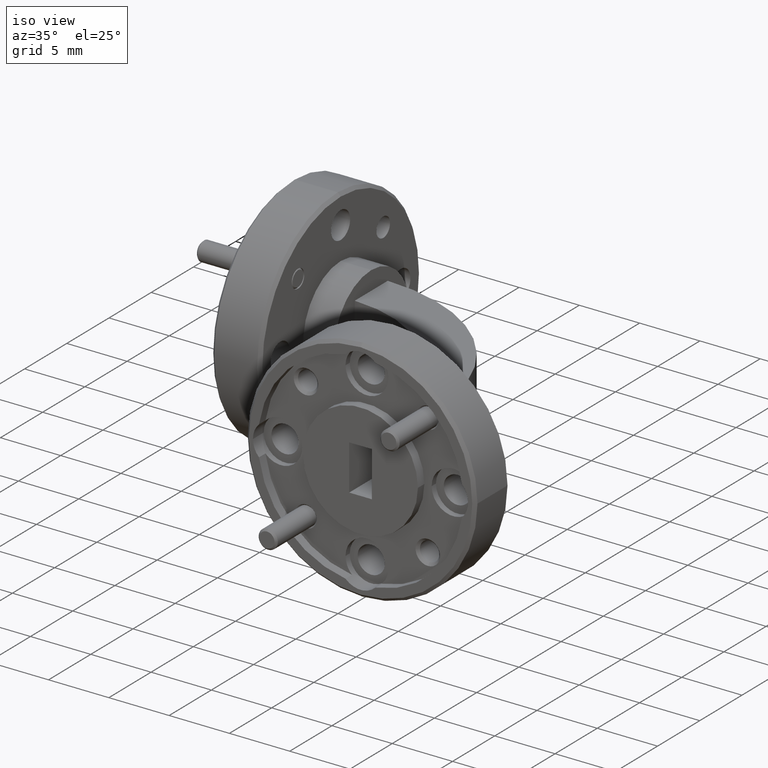
[diagram: clean part render]
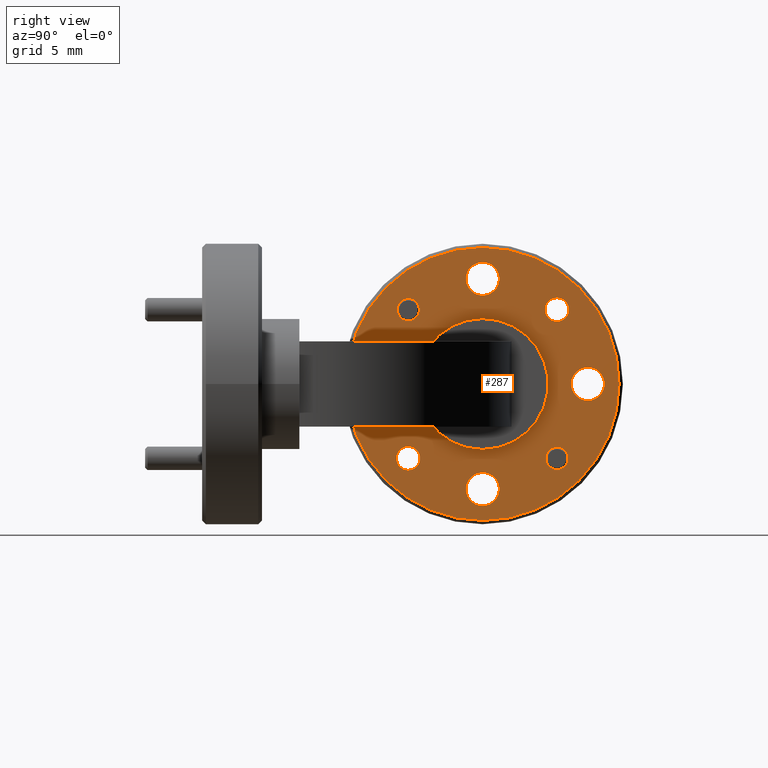
[diagram: tour spotlight — one face highlighted and labeled with its STEP entity id]
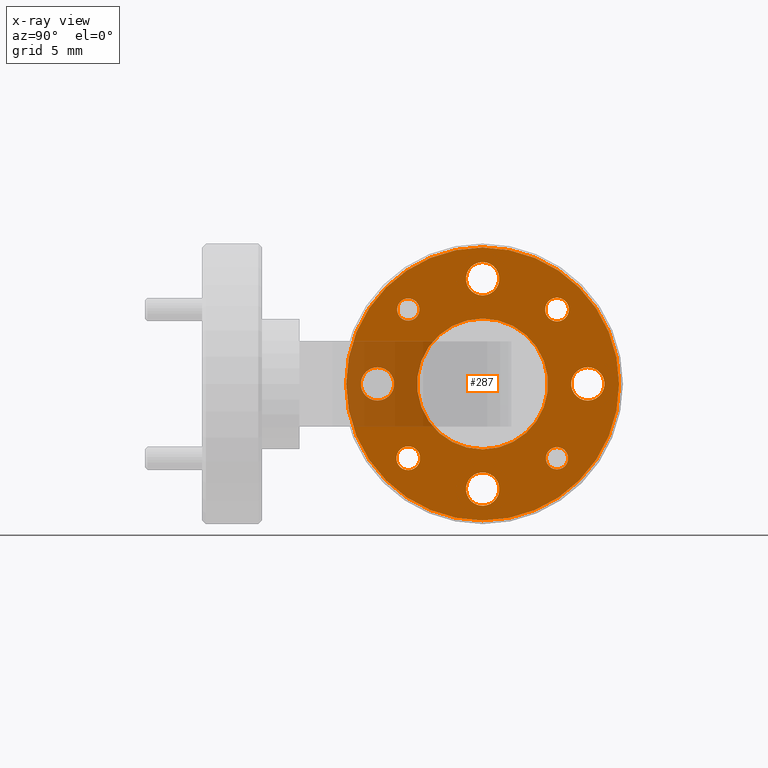
[diagram: x-ray of the same camera — body ghosted, this tour face saturated]
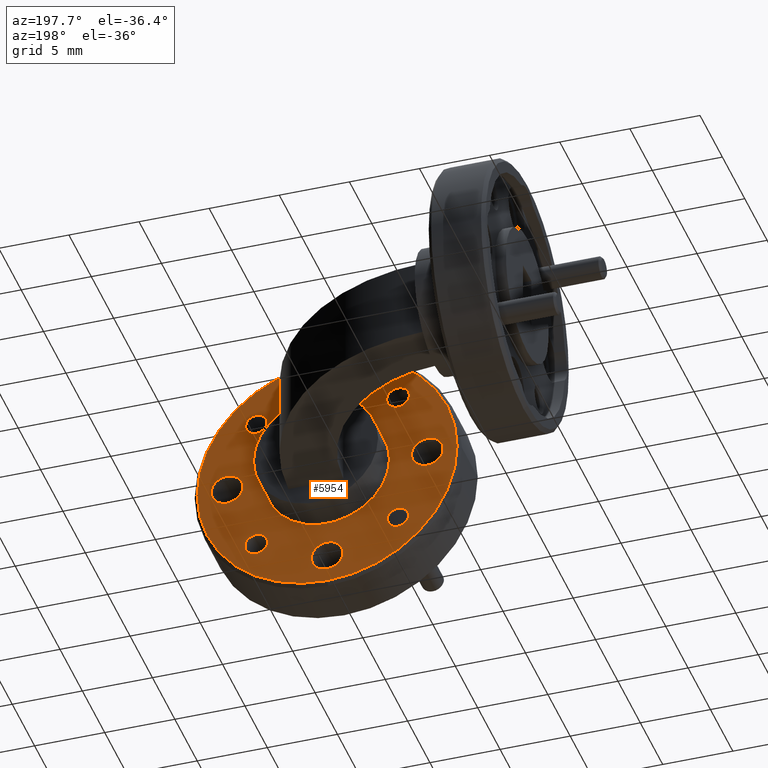
[diagram: tour spotlight — one face highlighted and labeled with its STEP entity id]
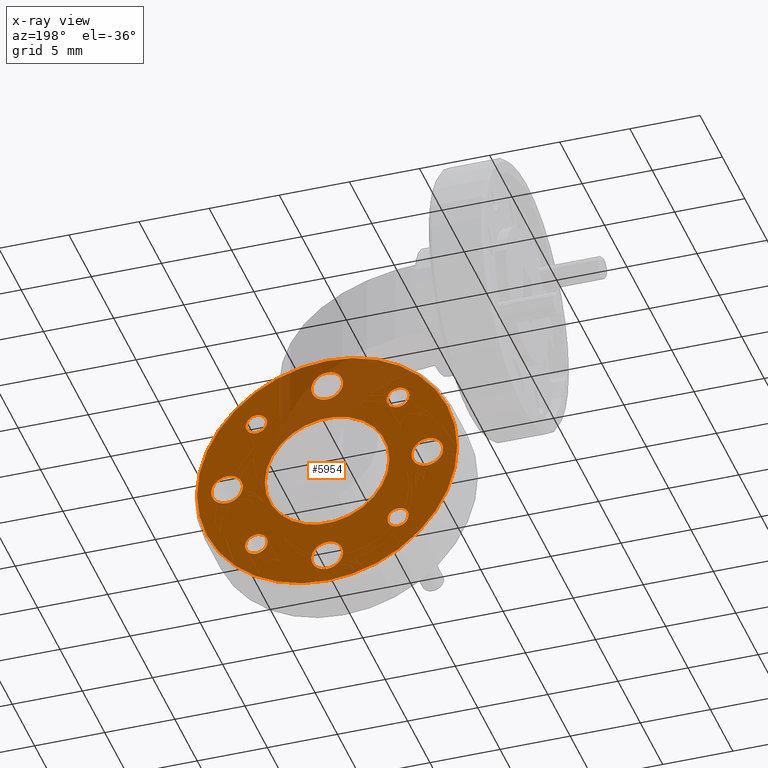
[diagram: x-ray of the same camera — body ghosted, this tour face saturated]
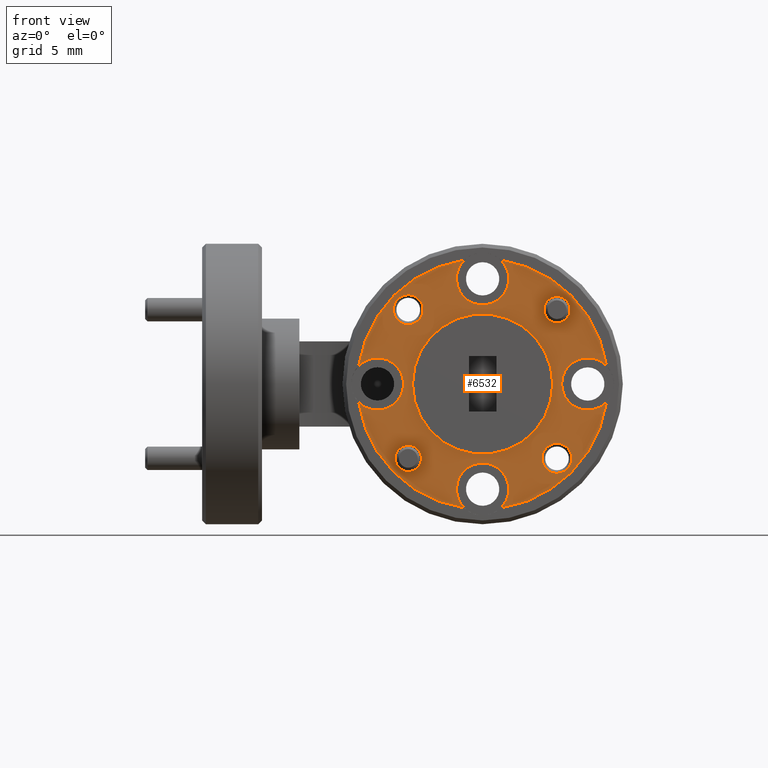
[diagram: tour spotlight — one face highlighted and labeled with its STEP entity id]
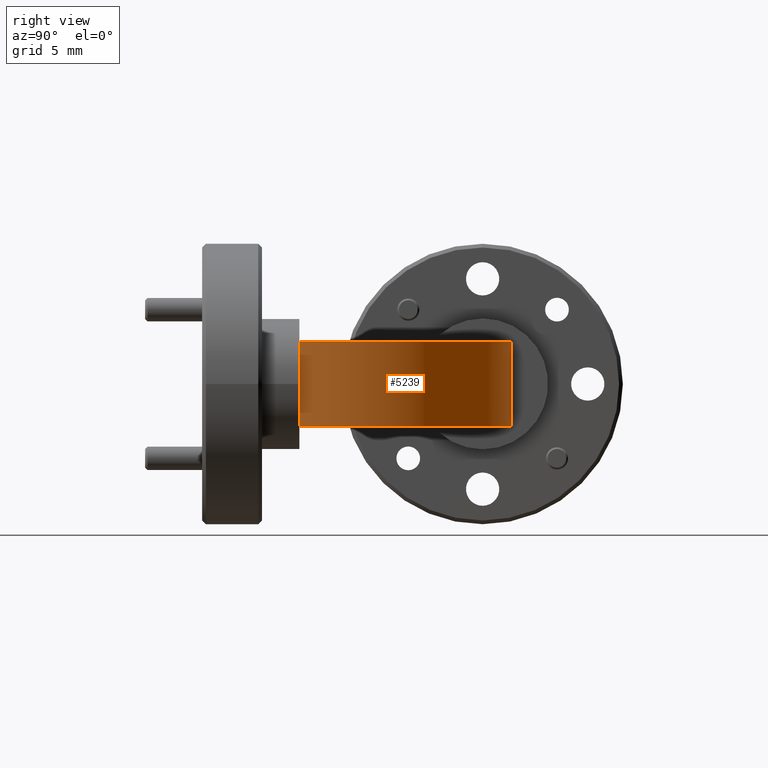
[diagram: tour spotlight — one face highlighted and labeled with its STEP entity id]
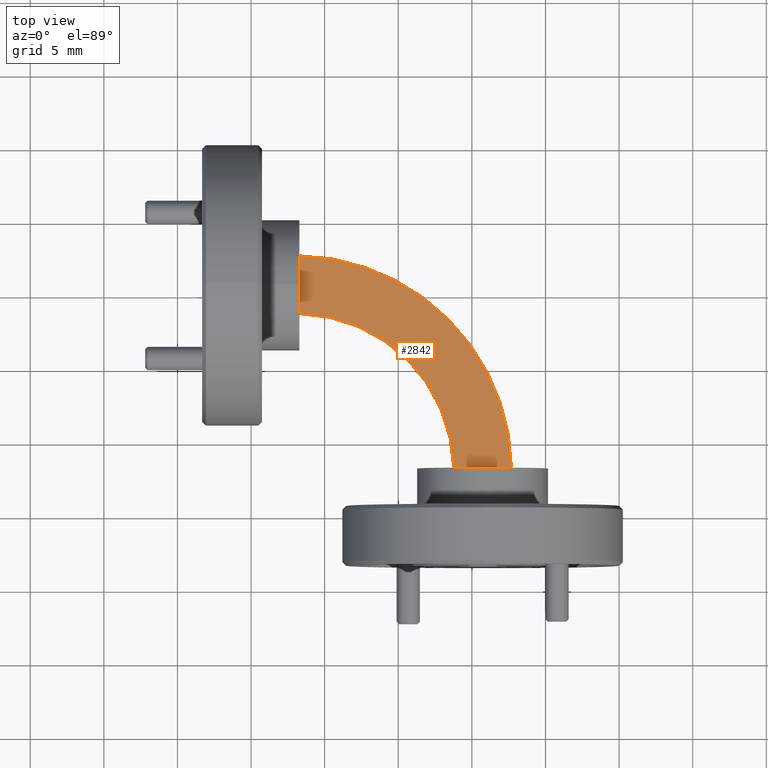
[diagram: tour spotlight — one face highlighted and labeled with its STEP entity id]
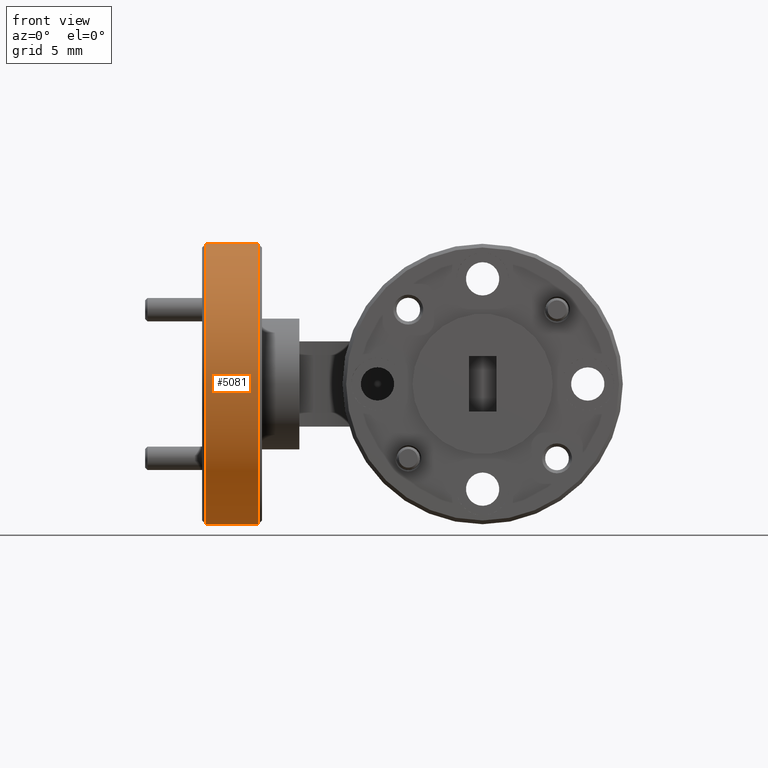
[diagram: tour spotlight — one face highlighted and labeled with its STEP entity id]
A machine part: a face-by-face anatomy tour. The part has 162 B-rep faces; the first image is the clean iso view, then the 6 largest visible faces are spotlighted one at a time (largest first), each with its STEP entity span.

Face 1 — right view, entity #287. An x-ray twin of the same camera follows (body ghosted, this face saturated) — the face is partly hidden behind the body. In plain terms, the highlighted planar face has unit normal (1, 0, 0).
Definition (entity closure, byte-faithful):
#6 = FACE_BOUND ( 'NONE', #4774, .T. ) ;
#43 = DIRECTION ( 'NONE',  ( -1.000000000000000000, -0.000000000000000000, -0.000000000000000000 ) ) ;
#94 = AXIS2_PLACEMENT_3D ( 'NONE', #3240, #107, #2527 ) ;
#102 = ORIENTED_EDGE ( 'NONE', *, *, #2461, .F. ) ;
#107 = DIRECTION ( 'NONE',  ( -1.000000000000000000, -0.000000000000000000, -0.000000000000000000 ) ) ;
#145 = VERTEX_POINT ( 'NONE', #5975 ) ;
#149 = DIRECTION ( 'NONE',  ( -1.000000000000000000, -0.000000000000000000, -0.000000000000000000 ) ) ;
#170 = CIRCLE ( 'NONE', #6221, 0.3650000000000003242 ) ;
#271 = EDGE_CURVE ( 'NONE', #543, #6646, #2757, .T. ) ;
#287 = ADVANCED_FACE ( 'NONE', ( #1931, #6, #2544, #3706, #1371, #1980, #1298, #6638, #4407, #6138 ), #6204, .T. ) ;
#323 = VERTEX_POINT ( 'NONE', #7544 ) ;
#346 = ORIENTED_EDGE ( 'NONE', *, *, #4401, .T. ) ;
#462 = CIRCLE ( 'NONE', #7787, 0.04449999999999975503 ) ;
#543 = VERTEX_POINT ( 'NONE', #6273 ) ;
#640 = CARTESIAN_POINT ( 'NONE',  ( -1.939202687138052328, 0.6170554953585049018, 0.2378134001413546861 ) ) ;
#665 = CIRCLE ( 'NONE', #1788, 0.04449999999999975503 ) ;
#808 = CIRCLE ( 'NONE', #7233, 0.04449999999999975503 ) ;
#833 = EDGE_LOOP ( 'NONE', ( #874, #2494 ) ) ;
#874 = ORIENTED_EDGE ( 'NONE', *, *, #2356, .F. ) ;
#902 = DIRECTION ( 'NONE',  ( 0.000000000000000000, 0.000000000000000000, -1.000000000000000000 ) ) ;
#926 = CARTESIAN_POINT ( 'NONE',  ( -1.939202687138052328, 0.8159292775672203346, 0.7496871823500721455 ) ) ;
#933 = DIRECTION ( 'NONE',  ( 0.000000000000000000, 0.000000000000000000, -1.000000000000000000 ) ) ;
#943 = EDGE_CURVE ( 'NONE', #7589, #6177, #2881, .T. ) ;
#1084 = CARTESIAN_POINT ( 'NONE',  ( -1.939202687138052328, 0.6170554953585049018, 0.2823134001413544203 ) ) ;
#1089 = AXIS2_PLACEMENT_3D ( 'NONE', #4954, #149, #1879 ) ;
#1191 = AXIS2_PLACEMENT_3D ( 'NONE', #7646, #6928, #5193 ) ;
#1225 = VERTEX_POINT ( 'NONE', #5085 ) ;
#1262 = CARTESIAN_POINT ( 'NONE',  ( -1.939202687138052328, 0.6170554953585049018, 0.2378134001413546861 ) ) ;
#1269 = EDGE_CURVE ( 'NONE', #4981, #7486, #170, .T. ) ;
#1295 = CARTESIAN_POINT ( 'NONE',  ( -1.939202687138052328, 0.8159292775672202236, 0.3499396179326370593 ) ) ;
#1298 = FACE_BOUND ( 'NONE', #6909, .T. ) ;
#1333 = DIRECTION ( 'NONE',  ( 0.000000000000000000, 0.000000000000000000, -1.000000000000000000 ) ) ;
#1371 = FACE_BOUND ( 'NONE', #833, .T. ) ;
#1373 = EDGE_CURVE ( 'NONE', #2894, #3730, #1560, .T. ) ;
#1377 = VERTEX_POINT ( 'NONE', #3385 ) ;
#1386 = DIRECTION ( 'NONE',  ( 0.000000000000000000, 0.000000000000000000, -1.000000000000000000 ) ) ;
#1459 = EDGE_CURVE ( 'NONE', #2287, #1377, #3251, .T. ) ;
#1543 = VERTEX_POINT ( 'NONE', #7103 ) ;
#1544 = DIRECTION ( 'NONE',  ( 0.000000000000000000, 0.000000000000000000, -1.000000000000000000 ) ) ;
#1559 = DIRECTION ( 'NONE',  ( 0.000000000000000000, 0.000000000000000000, -1.000000000000000000 ) ) ;
#1560 = CIRCLE ( 'NONE', #2229, 0.03174999999999987554 ) ;
#1582 = EDGE_LOOP ( 'NONE', ( #6131, #3887 ) ) ;
#1619 = DIRECTION ( 'NONE',  ( 0.000000000000000000, 0.000000000000000000, -1.000000000000000000 ) ) ;
#1662 = EDGE_LOOP ( 'NONE', ( #346, #3079 ) ) ;
#1713 = AXIS2_PLACEMENT_3D ( 'NONE', #1262, #1857, #1333 ) ;
#1717 = ORIENTED_EDGE ( 'NONE', *, *, #943, .T. ) ;
#1755 = EDGE_CURVE ( 'NONE', #1225, #6130, #6028, .T. ) ;
#1788 = AXIS2_PLACEMENT_3D ( 'NONE', #3551, #5957, #3429 ) ;
#1810 = CARTESIAN_POINT ( 'NONE',  ( -1.939202687138052328, 0.6170554953585049018, 0.5190634001413547693 ) ) ;
#1857 = DIRECTION ( 'NONE',  ( 1.000000000000000000, 0.000000000000000000, 0.000000000000000000 ) ) ;
#1879 = DIRECTION ( 'NONE',  ( 0.000000000000000000, 0.000000000000000000, 1.000000000000000000 ) ) ;
#1909 = EDGE_CURVE ( 'NONE', #4580, #1543, #1986, .T. ) ;
#1931 = FACE_OUTER_BOUND ( 'NONE', #1582, .T. ) ;
#1980 = FACE_BOUND ( 'NONE', #1662, .T. ) ;
#1984 = ORIENTED_EDGE ( 'NONE', *, *, #1909, .F. ) ;
#1986 = CIRCLE ( 'NONE', #3889, 0.03174999999999991024 ) ;
#2054 = EDGE_LOOP ( 'NONE', ( #1984, #3171 ) ) ;
#2081 = CARTESIAN_POINT ( 'NONE',  ( -1.939202687138052328, 0.4181817131497894136, 0.3201896179326372271 ) ) ;
#2095 = DIRECTION ( 'NONE',  ( 1.000000000000000000, 0.000000000000000000, 0.000000000000000000 ) ) ;
#2106 = AXIS2_PLACEMENT_3D ( 'NONE', #6105, #43, #4846 ) ;
#2197 = DIRECTION ( 'NONE',  ( 1.000000000000000000, 0.000000000000000000, 0.000000000000000000 ) ) ;
#2214 = DIRECTION ( 'NONE',  ( 0.000000000000000000, 0.000000000000000000, -1.000000000000000000 ) ) ;
#2229 = AXIS2_PLACEMENT_3D ( 'NONE', #7473, #3894, #902 ) ;
#2280 = CARTESIAN_POINT ( 'NONE',  ( -1.939202687138052328, 0.8159292775672202236, 0.3201896179326370606 ) ) ;
#2287 = VERTEX_POINT ( 'NONE', #3681 ) ;
#2350 = CARTESIAN_POINT ( 'NONE',  ( -1.939202687138052328, 0.4181817131497895801, 0.6881871823500723684 ) ) ;
#2356 = EDGE_CURVE ( 'NONE', #6646, #543, #462, .T. ) ;
#2357 = CIRCLE ( 'NONE', #1191, 0.03174999999999987554 ) ;
#2461 = EDGE_CURVE ( 'NONE', #2927, #323, #808, .T. ) ;
#2494 = ORIENTED_EDGE ( 'NONE', *, *, #271, .F. ) ;
#2527 = DIRECTION ( 'NONE',  ( 0.000000000000000000, 0.000000000000000000, 1.000000000000000000 ) ) ;
#2544 = FACE_BOUND ( 'NONE', #4505, .T. ) ;
#2558 = CARTESIAN_POINT ( 'NONE',  ( -1.939202687138052328, 0.6170554953585049018, 0.3440634001413547249 ) ) ;
#2570 = AXIS2_PLACEMENT_3D ( 'NONE', #3485, #4084, #7584 ) ;
#2574 = CARTESIAN_POINT ( 'NONE',  ( -1.939202687138052328, 0.6170554953585049018, 0.5190634001413547693 ) ) ;
#2609 = DIRECTION ( 'NONE',  ( 0.000000000000000000, 0.000000000000000000, -1.000000000000000000 ) ) ;
#2689 = DIRECTION ( 'NONE',  ( 1.000000000000000000, 0.000000000000000000, 0.000000000000000000 ) ) ;
#2696 = CARTESIAN_POINT ( 'NONE',  ( -1.939202687138052328, 0.4181817131497894136, 0.3201896179326372271 ) ) ;
#2700 = VERTEX_POINT ( 'NONE', #3043 ) ;
#2757 = CIRCLE ( 'NONE', #1713, 0.04449999999999975503 ) ;
#2819 = EDGE_LOOP ( 'NONE', ( #7830, #3837 ) ) ;
#2881 = CIRCLE ( 'NONE', #2106, 0.02975000000000000214 ) ;
#2894 = VERTEX_POINT ( 'NONE', #4607 ) ;
#2902 = DIRECTION ( 'NONE',  ( 1.000000000000000000, 0.000000000000000000, 0.000000000000000000 ) ) ;
#2927 = VERTEX_POINT ( 'NONE', #4648 ) ;
#2938 = DIRECTION ( 'NONE',  ( 1.000000000000000000, 0.000000000000000000, 0.000000000000000000 ) ) ;
#3006 = AXIS2_PLACEMENT_3D ( 'NONE', #5631, #4564, #1544 ) ;
#3015 = VERTEX_POINT ( 'NONE', #5977 ) ;
#3025 = DIRECTION ( 'NONE',  ( 1.000000000000000000, 0.000000000000000000, 0.000000000000000000 ) ) ;
#3043 = CARTESIAN_POINT ( 'NONE',  ( -1.939202687138052328, 0.8159292775672202236, 0.2904396179326371175 ) ) ;
#3079 = ORIENTED_EDGE ( 'NONE', *, *, #6728, .T. ) ;
#3088 = DIRECTION ( 'NONE',  ( 1.000000000000000000, 0.000000000000000000, 0.000000000000000000 ) ) ;
#3099 = EDGE_CURVE ( 'NONE', #7486, #4981, #6531, .T. ) ;
#3104 = AXIS2_PLACEMENT_3D ( 'NONE', #4602, #5858, #2214 ) ;
#3170 = CIRCLE ( 'NONE', #4173, 0.1749999999999999889 ) ;
#3171 = ORIENTED_EDGE ( 'NONE', *, *, #3682, .F. ) ;
#3205 = EDGE_CURVE ( 'NONE', #323, #2927, #4042, .T. ) ;
#3240 = CARTESIAN_POINT ( 'NONE',  ( -1.939202687138052328, 0.8159292775672202236, 0.3201896179326370606 ) ) ;
#3251 = CIRCLE ( 'NONE', #7639, 0.04449999999999975503 ) ;
#3385 = CARTESIAN_POINT ( 'NONE',  ( -1.939202687138052328, 0.3358054953585048463, 0.5635634001413545313 ) ) ;
#3429 = DIRECTION ( 'NONE',  ( 0.000000000000000000, 0.000000000000000000, -1.000000000000000000 ) ) ;
#3485 = CARTESIAN_POINT ( 'NONE',  ( -1.939202687138052328, 0.6170554953585049018, 0.8003134001413547693 ) ) ;
#3507 = CIRCLE ( 'NONE', #94, 0.02975000000000000214 ) ;
#3551 = CARTESIAN_POINT ( 'NONE',  ( -1.939202687138052328, 0.3358054953585048463, 0.5190634001413547693 ) ) ;
#3636 = AXIS2_PLACEMENT_3D ( 'NONE', #2574, #5006, #4408 ) ;
#3681 = CARTESIAN_POINT ( 'NONE',  ( -1.939202687138052328, 0.3358054953585048463, 0.4745634001413549519 ) ) ;
#3682 = EDGE_CURVE ( 'NONE', #1543, #4580, #7696, .T. ) ;
#3706 = FACE_BOUND ( 'NONE', #2819, .T. ) ;
#3730 = VERTEX_POINT ( 'NONE', #926 ) ;
#3837 = ORIENTED_EDGE ( 'NONE', *, *, #1459, .F. ) ;
#3887 = ORIENTED_EDGE ( 'NONE', *, *, #3099, .T. ) ;
#3889 = AXIS2_PLACEMENT_3D ( 'NONE', #2696, #5121, #933 ) ;
#3890 = CARTESIAN_POINT ( 'NONE',  ( -1.939202687138052328, 0.4181817131497894136, 0.3519396179326370611 ) ) ;
#3894 = DIRECTION ( 'NONE',  ( 1.000000000000000000, 0.000000000000000000, 0.000000000000000000 ) ) ;
#3956 = CARTESIAN_POINT ( 'NONE',  ( -1.939202687138052328, 0.6170554953585049018, 0.8840634001413550935 ) ) ;
#4042 = CIRCLE ( 'NONE', #7430, 0.04449999999999975503 ) ;
#4084 = DIRECTION ( 'NONE',  ( 1.000000000000000000, 0.000000000000000000, 0.000000000000000000 ) ) ;
#4157 = CARTESIAN_POINT ( 'NONE',  ( -1.939202687138052328, 0.6170554953585049018, 0.5190634001413547693 ) ) ;
#4173 = AXIS2_PLACEMENT_3D ( 'NONE', #4686, #2902, #6705 ) ;
#4259 = DIRECTION ( 'NONE',  ( 1.000000000000000000, 0.000000000000000000, 0.000000000000000000 ) ) ;
#4333 = ORIENTED_EDGE ( 'NONE', *, *, #5648, .F. ) ;
#4355 = EDGE_CURVE ( 'NONE', #1377, #2287, #665, .T. ) ;
#4401 = EDGE_CURVE ( 'NONE', #7748, #2700, #6106, .T. ) ;
#4407 = FACE_BOUND ( 'NONE', #2054, .T. ) ;
#4408 = DIRECTION ( 'NONE',  ( 0.000000000000000000, 0.000000000000000000, -1.000000000000000000 ) ) ;
#4505 = EDGE_LOOP ( 'NONE', ( #6968, #6712 ) ) ;
#4521 = CIRCLE ( 'NONE', #1089, 0.02975000000000000214 ) ;
#4564 = DIRECTION ( 'NONE',  ( 1.000000000000000000, 0.000000000000000000, 0.000000000000000000 ) ) ;
#4573 = CARTESIAN_POINT ( 'NONE',  ( -1.939202687138052328, 0.3358054953585048463, 0.5190634001413547693 ) ) ;
#4580 = VERTEX_POINT ( 'NONE', #3890 ) ;
#4593 = AXIS2_PLACEMENT_3D ( 'NONE', #2280, #4705, #7069 ) ;
#4602 = CARTESIAN_POINT ( 'NONE',  ( -1.939202687138052328, 0.6170554953585049018, 0.8003134001413547693 ) ) ;
#4607 = CARTESIAN_POINT ( 'NONE',  ( -1.939202687138052328, 0.8159292775672203346, 0.6861871823500723666 ) ) ;
#4648 = CARTESIAN_POINT ( 'NONE',  ( -1.939202687138052328, 0.8983054953585049018, 0.4745634001413549519 ) ) ;
#4658 = EDGE_CURVE ( 'NONE', #145, #3015, #6966, .T. ) ;
#4662 = ORIENTED_EDGE ( 'NONE', *, *, #1373, .F. ) ;
#4686 = CARTESIAN_POINT ( 'NONE',  ( -1.939202687138052328, 0.6170554953585049018, 0.5190634001413547693 ) ) ;
#4705 = DIRECTION ( 'NONE',  ( -1.000000000000000000, -0.000000000000000000, -0.000000000000000000 ) ) ;
#4706 = EDGE_CURVE ( 'NONE', #3015, #145, #6346, .T. ) ;
#4774 = EDGE_LOOP ( 'NONE', ( #5180, #102 ) ) ;
#4803 = CARTESIAN_POINT ( 'NONE',  ( -1.939202687138052328, 0.8983054953585049018, 0.5190634001413547693 ) ) ;
#4846 = DIRECTION ( 'NONE',  ( 0.000000000000000000, 0.000000000000000000, 1.000000000000000000 ) ) ;
#4949 = AXIS2_PLACEMENT_3D ( 'NONE', #2081, #2689, #7458 ) ;
#4954 = CARTESIAN_POINT ( 'NONE',  ( -1.939202687138052328, 0.4181817131497895801, 0.7179371823500723115 ) ) ;
#4981 = VERTEX_POINT ( 'NONE', #3956 ) ;
#4988 = CARTESIAN_POINT ( 'NONE',  ( -1.939202687138052328, 0.4181817131497895801, 0.7476871823500723657 ) ) ;
#5006 = DIRECTION ( 'NONE',  ( 1.000000000000000000, 0.000000000000000000, 0.000000000000000000 ) ) ;
#5085 = CARTESIAN_POINT ( 'NONE',  ( -1.939202687138052328, 0.6170554953585049018, 0.6940634001413545917 ) ) ;
#5121 = DIRECTION ( 'NONE',  ( 1.000000000000000000, 0.000000000000000000, 0.000000000000000000 ) ) ;
#5180 = ORIENTED_EDGE ( 'NONE', *, *, #3205, .F. ) ;
#5193 = DIRECTION ( 'NONE',  ( 0.000000000000000000, 0.000000000000000000, -1.000000000000000000 ) ) ;
#5631 = CARTESIAN_POINT ( 'NONE',  ( -1.939202687138052328, 0.6170554953585049018, 0.5190634001413547693 ) ) ;
#5648 = EDGE_CURVE ( 'NONE', #6130, #1225, #3170, .T. ) ;
#5835 = ORIENTED_EDGE ( 'NONE', *, *, #1755, .F. ) ;
#5858 = DIRECTION ( 'NONE',  ( 1.000000000000000000, 0.000000000000000000, 0.000000000000000000 ) ) ;
#5957 = DIRECTION ( 'NONE',  ( 1.000000000000000000, 0.000000000000000000, 0.000000000000000000 ) ) ;
#5960 = CARTESIAN_POINT ( 'NONE',  ( -1.939202687138052328, 0.6170554953585049018, 0.1540634001413543896 ) ) ;
#5975 = CARTESIAN_POINT ( 'NONE',  ( -1.939202687138052328, 0.6170554953585049018, 0.8448134001413545313 ) ) ;
#5977 = CARTESIAN_POINT ( 'NONE',  ( -1.939202687138052328, 0.6170554953585049018, 0.7558134001413550074 ) ) ;
#6028 = CIRCLE ( 'NONE', #3636, 0.1749999999999999889 ) ;
#6043 = EDGE_CURVE ( 'NONE', #3730, #2894, #2357, .T. ) ;
#6105 = CARTESIAN_POINT ( 'NONE',  ( -1.939202687138052328, 0.4181817131497895801, 0.7179371823500723115 ) ) ;
#6106 = CIRCLE ( 'NONE', #4593, 0.02975000000000000214 ) ;
#6130 = VERTEX_POINT ( 'NONE', #2558 ) ;
#6131 = ORIENTED_EDGE ( 'NONE', *, *, #1269, .T. ) ;
#6138 = FACE_BOUND ( 'NONE', #7408, .T. ) ;
#6177 = VERTEX_POINT ( 'NONE', #4988 ) ;
#6185 = DIRECTION ( 'NONE',  ( 0.000000000000000000, 0.000000000000000000, -1.000000000000000000 ) ) ;
#6204 = PLANE ( 'NONE',  #3006 ) ;
#6221 = AXIS2_PLACEMENT_3D ( 'NONE', #4157, #2197, #1619 ) ;
#6273 = CARTESIAN_POINT ( 'NONE',  ( -1.939202687138052328, 0.6170554953585049018, 0.1933134001413549241 ) ) ;
#6346 = CIRCLE ( 'NONE', #2570, 0.04449999999999975503 ) ;
#6531 = CIRCLE ( 'NONE', #7156, 0.3650000000000003242 ) ;
#6638 = FACE_BOUND ( 'NONE', #7631, .T. ) ;
#6646 = VERTEX_POINT ( 'NONE', #1084 ) ;
#6705 = DIRECTION ( 'NONE',  ( 0.000000000000000000, 0.000000000000000000, -1.000000000000000000 ) ) ;
#6712 = ORIENTED_EDGE ( 'NONE', *, *, #4706, .F. ) ;
#6728 = EDGE_CURVE ( 'NONE', #2700, #7748, #3507, .T. ) ;
#6737 = EDGE_CURVE ( 'NONE', #6177, #7589, #4521, .T. ) ;
#6909 = EDGE_LOOP ( 'NONE', ( #7383, #1717 ) ) ;
#6928 = DIRECTION ( 'NONE',  ( 1.000000000000000000, 0.000000000000000000, 0.000000000000000000 ) ) ;
#6966 = CIRCLE ( 'NONE', #3104, 0.04449999999999975503 ) ;
#6968 = ORIENTED_EDGE ( 'NONE', *, *, #4658, .F. ) ;
#7069 = DIRECTION ( 'NONE',  ( 0.000000000000000000, 0.000000000000000000, 1.000000000000000000 ) ) ;
#7103 = CARTESIAN_POINT ( 'NONE',  ( -1.939202687138052328, 0.4181817131497894136, 0.2884396179326372822 ) ) ;
#7156 = AXIS2_PLACEMENT_3D ( 'NONE', #1810, #4259, #2609 ) ;
#7170 = DIRECTION ( 'NONE',  ( 0.000000000000000000, 0.000000000000000000, -1.000000000000000000 ) ) ;
#7233 = AXIS2_PLACEMENT_3D ( 'NONE', #4803, #2938, #7170 ) ;
#7383 = ORIENTED_EDGE ( 'NONE', *, *, #6737, .T. ) ;
#7408 = EDGE_LOOP ( 'NONE', ( #5835, #4333 ) ) ;
#7430 = AXIS2_PLACEMENT_3D ( 'NONE', #7741, #3025, #1386 ) ;
#7458 = DIRECTION ( 'NONE',  ( 0.000000000000000000, 0.000000000000000000, -1.000000000000000000 ) ) ;
#7473 = CARTESIAN_POINT ( 'NONE',  ( -1.939202687138052328, 0.8159292775672203346, 0.7179371823500722005 ) ) ;
#7486 = VERTEX_POINT ( 'NONE', #5960 ) ;
#7491 = ORIENTED_EDGE ( 'NONE', *, *, #6043, .F. ) ;
#7544 = CARTESIAN_POINT ( 'NONE',  ( -1.939202687138052328, 0.8983054953585049018, 0.5635634001413545313 ) ) ;
#7584 = DIRECTION ( 'NONE',  ( 0.000000000000000000, 0.000000000000000000, -1.000000000000000000 ) ) ;
#7589 = VERTEX_POINT ( 'NONE', #2350 ) ;
#7631 = EDGE_LOOP ( 'NONE', ( #7491, #4662 ) ) ;
#7639 = AXIS2_PLACEMENT_3D ( 'NONE', #4573, #2095, #1559 ) ;
#7646 = CARTESIAN_POINT ( 'NONE',  ( -1.939202687138052328, 0.8159292775672203346, 0.7179371823500722005 ) ) ;
#7696 = CIRCLE ( 'NONE', #4949, 0.03174999999999991024 ) ;
#7741 = CARTESIAN_POINT ( 'NONE',  ( -1.939202687138052328, 0.8983054953585049018, 0.5190634001413547693 ) ) ;
#7748 = VERTEX_POINT ( 'NONE', #1295 ) ;
#7787 = AXIS2_PLACEMENT_3D ( 'NONE', #640, #3088, #6185 ) ;
#7830 = ORIENTED_EDGE ( 'NONE', *, *, #4355, .F. ) ;

Face 2 — auxiliary view, entity #5954. An x-ray twin of the same camera follows (body ghosted, this face saturated) — the face is partly hidden behind the body. In plain terms, the highlighted planar face has unit normal (-0, -1, 0).
Definition (entity closure, byte-faithful):
#30 = FACE_BOUND ( 'NONE', #1846, .T. ) ;
#73 = FACE_BOUND ( 'NONE', #6726, .T. ) ;
#81 = VERTEX_POINT ( 'NONE', #6454 ) ;
#167 = ORIENTED_EDGE ( 'NONE', *, *, #2390, .T. ) ;
#182 = DIRECTION ( 'NONE',  ( 3.608224830031758756E-15, 1.000000000000000000, -0.000000000000000000 ) ) ;
#217 = DIRECTION ( 'NONE',  ( 1.000000000000000000, -3.629916133313734410E-15, 0.000000000000000000 ) ) ;
#223 = EDGE_CURVE ( 'NONE', #5740, #386, #6799, .T. ) ;
#258 = CARTESIAN_POINT ( 'NONE',  ( -1.150328904929335261, 0.02705549535850407250, 0.3201896179326372271 ) ) ;
#313 = AXIS2_PLACEMENT_3D ( 'NONE', #5697, #5588, #2535 ) ;
#314 = EDGE_LOOP ( 'NONE', ( #1850, #5124 ) ) ;
#382 = DIRECTION ( 'NONE',  ( -3.608224830031758756E-15, -1.000000000000000000, 0.000000000000000000 ) ) ;
#386 = VERTEX_POINT ( 'NONE', #2212 ) ;
#412 = EDGE_CURVE ( 'NONE', #6102, #3274, #5866, .T. ) ;
#456 = CARTESIAN_POINT ( 'NONE',  ( -1.548076469346766348, 0.02705549535850557477, 0.6861871823500722556 ) ) ;
#482 = CARTESIAN_POINT ( 'NONE',  ( -1.548076469346765904, 0.02705549535849833404, 0.3201896179326370606 ) ) ;
#504 = FACE_OUTER_BOUND ( 'NONE', #5932, .T. ) ;
#561 = VERTEX_POINT ( 'NONE', #5768 ) ;
#578 = VERTEX_POINT ( 'NONE', #456 ) ;
#658 = EDGE_LOOP ( 'NONE', ( #6396, #3128 ) ) ;
#684 = CIRCLE ( 'NONE', #6995, 0.1749999999999999056 ) ;
#738 = CIRCLE ( 'NONE', #5330, 0.04449999999999975503 ) ;
#745 = CARTESIAN_POINT ( 'NONE',  ( -1.349202687138050916, 0.02705549535850482190, 0.1933134001413549241 ) ) ;
#766 = CARTESIAN_POINT ( 'NONE',  ( -1.349202687138052470, 0.02705549535850482190, 0.5190634001413547693 ) ) ;
#797 = ORIENTED_EDGE ( 'NONE', *, *, #4888, .T. ) ;
#812 = AXIS2_PLACEMENT_3D ( 'NONE', #2473, #4343, #4938 ) ;
#845 = ORIENTED_EDGE ( 'NONE', *, *, #2742, .T. ) ;
#956 = VERTEX_POINT ( 'NONE', #5451 ) ;
#987 = CARTESIAN_POINT ( 'NONE',  ( -1.349202687138050916, 0.02705549535850482190, 0.8003134001413547693 ) ) ;
#1094 = EDGE_CURVE ( 'NONE', #6317, #1183, #5539, .T. ) ;
#1136 = FACE_BOUND ( 'NONE', #1591, .T. ) ;
#1159 = CARTESIAN_POINT ( 'NONE',  ( -1.349202687138052470, 0.02705549535850482190, 0.5190634001413547693 ) ) ;
#1183 = VERTEX_POINT ( 'NONE', #745 ) ;
#1202 = AXIS2_PLACEMENT_3D ( 'NONE', #987, #3423, #5678 ) ;
#1210 = CIRCLE ( 'NONE', #5033, 0.02974999999999993622 ) ;
#1212 = CIRCLE ( 'NONE', #4793, 0.04449999999999975503 ) ;
#1238 = DIRECTION ( 'NONE',  ( 0.000000000000000000, 0.000000000000000000, -1.000000000000000000 ) ) ;
#1245 = AXIS2_PLACEMENT_3D ( 'NONE', #482, #5985, #5910 ) ;
#1306 = DIRECTION ( 'NONE',  ( -3.608224830031758756E-15, -1.000000000000000000, 0.000000000000000000 ) ) ;
#1337 = CIRCLE ( 'NONE', #4785, 0.03175000000000000738 ) ;
#1346 = EDGE_LOOP ( 'NONE', ( #5840, #797 ) ) ;
#1351 = CARTESIAN_POINT ( 'NONE',  ( -1.150328904929335261, 0.02705549535850407250, 0.2884396179326372822 ) ) ;
#1360 = EDGE_CURVE ( 'NONE', #3387, #5662, #4000, .T. ) ;
#1363 = CIRCLE ( 'NONE', #1887, 0.02975000000000000214 ) ;
#1501 = DIRECTION ( 'NONE',  ( 1.000000000000000000, -3.609941991627778269E-15, 0.000000000000000000 ) ) ;
#1580 = DIRECTION ( 'NONE',  ( 3.608224830031758756E-15, 1.000000000000000000, -0.000000000000000000 ) ) ;
#1591 = EDGE_LOOP ( 'NONE', ( #6920, #167 ) ) ;
#1657 = CARTESIAN_POINT ( 'NONE',  ( -1.548076469346765904, 0.02705549535849833404, 0.3201896179326370606 ) ) ;
#1720 = CARTESIAN_POINT ( 'NONE',  ( -1.630452687138050694, 0.02705549535850584886, 0.5190634001413547693 ) ) ;
#1735 = ORIENTED_EDGE ( 'NONE', *, *, #1094, .T. ) ;
#1807 = AXIS2_PLACEMENT_3D ( 'NONE', #1720, #4175, #3253 ) ;
#1828 = AXIS2_PLACEMENT_3D ( 'NONE', #1939, #7314, #7194 ) ;
#1842 = DIRECTION ( 'NONE',  ( -3.608224830031758756E-15, -1.000000000000000000, 0.000000000000000000 ) ) ;
#1846 = EDGE_LOOP ( 'NONE', ( #2279, #7122 ) ) ;
#1850 = ORIENTED_EDGE ( 'NONE', *, *, #1360, .T. ) ;
#1887 = AXIS2_PLACEMENT_3D ( 'NONE', #1940, #6724, #7439 ) ;
#1939 = CARTESIAN_POINT ( 'NONE',  ( -1.349202687138052470, 0.02705549535850482190, 0.5190634001413547693 ) ) ;
#1940 = CARTESIAN_POINT ( 'NONE',  ( -1.150328904929335261, 0.02705549535849970100, 0.7179371823500723115 ) ) ;
#2212 = CARTESIAN_POINT ( 'NONE',  ( -1.548076469346765904, 0.02705549535849833404, 0.2904396179326371175 ) ) ;
#2258 = EDGE_CURVE ( 'NONE', #5662, #3387, #1212, .T. ) ;
#2279 = ORIENTED_EDGE ( 'NONE', *, *, #3902, .T. ) ;
#2282 = CARTESIAN_POINT ( 'NONE',  ( -1.630452687138050694, 0.02705549535850584886, 0.4745634001413549519 ) ) ;
#2297 = ORIENTED_EDGE ( 'NONE', *, *, #2588, .T. ) ;
#2308 = EDGE_CURVE ( 'NONE', #81, #578, #1337, .T. ) ;
#2390 = EDGE_CURVE ( 'NONE', #4424, #7328, #5394, .T. ) ;
#2442 = CARTESIAN_POINT ( 'NONE',  ( -1.349202687138050916, 0.02705549535850482190, 0.7558134001413550074 ) ) ;
#2473 = CARTESIAN_POINT ( 'NONE',  ( -1.349202687138050916, 0.02705549535850482190, 0.2378134001413546861 ) ) ;
#2535 = DIRECTION ( 'NONE',  ( 1.000000000000000000, -3.608224830031758756E-15, 0.000000000000000000 ) ) ;
#2551 = CARTESIAN_POINT ( 'NONE',  ( -1.548076469346765904, 0.02705549535849833404, 0.3499396179326370038 ) ) ;
#2582 = CARTESIAN_POINT ( 'NONE',  ( -1.548076469346766348, 0.02705549535850557477, 0.7179371823500722005 ) ) ;
#2588 = EDGE_CURVE ( 'NONE', #3274, #6102, #3991, .T. ) ;
#2591 = DIRECTION ( 'NONE',  ( 1.000000000000000000, -3.613617423126084000E-15, 0.000000000000000000 ) ) ;
#2673 = DIRECTION ( 'NONE',  ( -3.608224830031758756E-15, -1.000000000000000000, 0.000000000000000000 ) ) ;
#2720 = CARTESIAN_POINT ( 'NONE',  ( -1.067952687138050694, 0.02705549535850379841, 0.4745634001413550074 ) ) ;
#2733 = EDGE_LOOP ( 'NONE', ( #5624, #7300 ) ) ;
#2742 = EDGE_CURVE ( 'NONE', #1183, #6317, #4612, .T. ) ;
#2756 = AXIS2_PLACEMENT_3D ( 'NONE', #7139, #7256, #5949 ) ;
#2759 = AXIS2_PLACEMENT_3D ( 'NONE', #5889, #382, #5357 ) ;
#2778 = CIRCLE ( 'NONE', #5450, 0.1749999999999999056 ) ;
#2853 = AXIS2_PLACEMENT_3D ( 'NONE', #258, #2673, #5098 ) ;
#2876 = CIRCLE ( 'NONE', #3880, 0.3650000000000018230 ) ;
#2961 = ORIENTED_EDGE ( 'NONE', *, *, #4154, .T. ) ;
#2965 = DIRECTION ( 'NONE',  ( -3.608224830031758756E-15, -1.000000000000000000, 0.000000000000000000 ) ) ;
#3004 = CARTESIAN_POINT ( 'NONE',  ( -1.067952687138050694, 0.02705549535850379841, 0.5190634001413547693 ) ) ;
#3014 = DIRECTION ( 'NONE',  ( 1.000000000000000000, -3.609941991627778269E-15, 0.000000000000000000 ) ) ;
#3028 = CIRCLE ( 'NONE', #2759, 0.04449999999999975503 ) ;
#3071 = FACE_BOUND ( 'NONE', #4456, .T. ) ;
#3075 = CARTESIAN_POINT ( 'NONE',  ( -1.150328904929335261, 0.02705549535850407250, 0.3201896179326372271 ) ) ;
#3128 = ORIENTED_EDGE ( 'NONE', *, *, #2308, .T. ) ;
#3174 = CIRCLE ( 'NONE', #4048, 0.02975000000000000214 ) ;
#3202 = CARTESIAN_POINT ( 'NONE',  ( -1.349202687138050916, 0.02705549535850482190, 0.8003134001413547693 ) ) ;
#3220 = CARTESIAN_POINT ( 'NONE',  ( -1.174202687138052648, 0.02705549535850419046, 0.5190634001413547693 ) ) ;
#3253 = DIRECTION ( 'NONE',  ( 1.000000000000000000, -3.645021901658798436E-15, 0.000000000000000000 ) ) ;
#3274 = VERTEX_POINT ( 'NONE', #1351 ) ;
#3306 = DIRECTION ( 'NONE',  ( 1.000000000000000000, -3.629916133313734410E-15, 0.000000000000000000 ) ) ;
#3346 = VERTEX_POINT ( 'NONE', #2282 ) ;
#3387 = VERTEX_POINT ( 'NONE', #2442 ) ;
#3423 = DIRECTION ( 'NONE',  ( -3.608224830031758756E-15, -1.000000000000000000, 0.000000000000000000 ) ) ;
#3425 = EDGE_CURVE ( 'NONE', #7328, #4424, #738, .T. ) ;
#3472 = EDGE_CURVE ( 'NONE', #956, #6332, #1363, .T. ) ;
#3518 = VERTEX_POINT ( 'NONE', #5094 ) ;
#3562 = EDGE_LOOP ( 'NONE', ( #4575, #4330 ) ) ;
#3566 = FACE_BOUND ( 'NONE', #3562, .T. ) ;
#3596 = DIRECTION ( 'NONE',  ( 3.608224830031758756E-15, 1.000000000000000000, -0.000000000000000000 ) ) ;
#3603 = CARTESIAN_POINT ( 'NONE',  ( -1.349202687138050916, 0.02705549535850482190, 0.8448134001413545313 ) ) ;
#3627 = CARTESIAN_POINT ( 'NONE',  ( -1.067952687138050694, 0.02705549535850379841, 0.5635634001413544203 ) ) ;
#3679 = DIRECTION ( 'NONE',  ( 1.000000000000000000, -3.645021901658798436E-15, 0.000000000000000000 ) ) ;
#3692 = DIRECTION ( 'NONE',  ( 1.000000000000000000, -3.645021901658798436E-15, 0.000000000000000000 ) ) ;
#3732 = VERTEX_POINT ( 'NONE', #3220 ) ;
#3851 = DIRECTION ( 'NONE',  ( -3.608224830031758756E-15, -1.000000000000000000, 0.000000000000000000 ) ) ;
#3880 = AXIS2_PLACEMENT_3D ( 'NONE', #766, #182, #2591 ) ;
#3902 = EDGE_CURVE ( 'NONE', #386, #5740, #1210, .T. ) ;
#3943 = CARTESIAN_POINT ( 'NONE',  ( -1.150328904929335261, 0.02705549535849970100, 0.6881871823500723684 ) ) ;
#3991 = CIRCLE ( 'NONE', #2853, 0.03174999999999987554 ) ;
#4000 = CIRCLE ( 'NONE', #1202, 0.04449999999999975503 ) ;
#4048 = AXIS2_PLACEMENT_3D ( 'NONE', #4866, #7234, #1238 ) ;
#4104 = CIRCLE ( 'NONE', #1807, 0.04449999999999975503 ) ;
#4154 = EDGE_CURVE ( 'NONE', #3518, #561, #2876, .T. ) ;
#4175 = DIRECTION ( 'NONE',  ( -3.608224830031758756E-15, -1.000000000000000000, 0.000000000000000000 ) ) ;
#4240 = AXIS2_PLACEMENT_3D ( 'NONE', #3075, #7244, #7296 ) ;
#4330 = ORIENTED_EDGE ( 'NONE', *, *, #5036, .F. ) ;
#4343 = DIRECTION ( 'NONE',  ( -3.608224830031758756E-15, -1.000000000000000000, 0.000000000000000000 ) ) ;
#4374 = ORIENTED_EDGE ( 'NONE', *, *, #412, .T. ) ;
#4424 = VERTEX_POINT ( 'NONE', #3627 ) ;
#4456 = EDGE_LOOP ( 'NONE', ( #845, #1735 ) ) ;
#4567 = VERTEX_POINT ( 'NONE', #6796 ) ;
#4575 = ORIENTED_EDGE ( 'NONE', *, *, #6082, .F. ) ;
#4608 = EDGE_CURVE ( 'NONE', #578, #81, #5860, .T. ) ;
#4612 = CIRCLE ( 'NONE', #812, 0.04449999999999975503 ) ;
#4759 = CARTESIAN_POINT ( 'NONE',  ( -1.067952687138050694, 0.02705549535850379841, 0.5190634001413547693 ) ) ;
#4785 = AXIS2_PLACEMENT_3D ( 'NONE', #2582, #1306, #217 ) ;
#4793 = AXIS2_PLACEMENT_3D ( 'NONE', #3202, #5014, #4979 ) ;
#4838 = FACE_BOUND ( 'NONE', #658, .T. ) ;
#4866 = CARTESIAN_POINT ( 'NONE',  ( -1.150328904929335261, 0.02705549535849970100, 0.7179371823500723115 ) ) ;
#4874 = FACE_BOUND ( 'NONE', #314, .T. ) ;
#4888 = EDGE_CURVE ( 'NONE', #6018, #3346, #4104, .T. ) ;
#4938 = DIRECTION ( 'NONE',  ( 1.000000000000000000, -3.645021901658798436E-15, 0.000000000000000000 ) ) ;
#4979 = DIRECTION ( 'NONE',  ( 1.000000000000000000, -3.645021901658798436E-15, 0.000000000000000000 ) ) ;
#5014 = DIRECTION ( 'NONE',  ( -3.608224830031758756E-15, -1.000000000000000000, 0.000000000000000000 ) ) ;
#5033 = AXIS2_PLACEMENT_3D ( 'NONE', #1657, #5269, #5192 ) ;
#5036 = EDGE_CURVE ( 'NONE', #4567, #3732, #2778, .T. ) ;
#5078 = EDGE_CURVE ( 'NONE', #6332, #956, #3174, .T. ) ;
#5094 = CARTESIAN_POINT ( 'NONE',  ( -1.349202687138052470, 0.02705549535850482190, 0.1540634001413528908 ) ) ;
#5098 = DIRECTION ( 'NONE',  ( 1.000000000000000000, -3.629916133313749399E-15, 0.000000000000000000 ) ) ;
#5124 = ORIENTED_EDGE ( 'NONE', *, *, #2258, .T. ) ;
#5192 = DIRECTION ( 'NONE',  ( 0.000000000000000000, 0.000000000000000000, -1.000000000000000000 ) ) ;
#5269 = DIRECTION ( 'NONE',  ( -0.000000000000000000, -1.000000000000000000, -0.000000000000000000 ) ) ;
#5330 = AXIS2_PLACEMENT_3D ( 'NONE', #3004, #2965, #3679 ) ;
#5357 = DIRECTION ( 'NONE',  ( 1.000000000000000000, -3.645021901658798436E-15, 0.000000000000000000 ) ) ;
#5394 = CIRCLE ( 'NONE', #7625, 0.04449999999999975503 ) ;
#5450 = AXIS2_PLACEMENT_3D ( 'NONE', #1159, #3596, #3014 ) ;
#5451 = CARTESIAN_POINT ( 'NONE',  ( -1.150328904929335261, 0.02705549535849970100, 0.7476871823500723657 ) ) ;
#5539 = CIRCLE ( 'NONE', #2756, 0.04449999999999975503 ) ;
#5588 = DIRECTION ( 'NONE',  ( -3.608224830031758756E-15, -1.000000000000000000, 0.000000000000000000 ) ) ;
#5624 = ORIENTED_EDGE ( 'NONE', *, *, #5078, .T. ) ;
#5662 = VERTEX_POINT ( 'NONE', #3603 ) ;
#5675 = CARTESIAN_POINT ( 'NONE',  ( -1.548076469346766348, 0.02705549535850557477, 0.7179371823500722005 ) ) ;
#5678 = DIRECTION ( 'NONE',  ( 1.000000000000000000, -3.645021901658798436E-15, 0.000000000000000000 ) ) ;
#5697 = CARTESIAN_POINT ( 'NONE',  ( -1.349202687138052470, 0.02705549535850482190, 0.5190634001413547693 ) ) ;
#5740 = VERTEX_POINT ( 'NONE', #2551 ) ;
#5766 = CARTESIAN_POINT ( 'NONE',  ( -1.349202687138052470, 0.02705549535850482190, 0.5190634001413547693 ) ) ;
#5768 = CARTESIAN_POINT ( 'NONE',  ( -1.349202687138052470, 0.02705549535850482190, 0.8840634001413565368 ) ) ;
#5838 = EDGE_CURVE ( 'NONE', #561, #3518, #6485, .T. ) ;
#5840 = ORIENTED_EDGE ( 'NONE', *, *, #7203, .T. ) ;
#5860 = CIRCLE ( 'NONE', #7347, 0.03175000000000000738 ) ;
#5866 = CIRCLE ( 'NONE', #4240, 0.03174999999999987554 ) ;
#5889 = CARTESIAN_POINT ( 'NONE',  ( -1.630452687138050694, 0.02705549535850584886, 0.5190634001413547693 ) ) ;
#5910 = DIRECTION ( 'NONE',  ( 0.000000000000000000, 0.000000000000000000, -1.000000000000000000 ) ) ;
#5932 = EDGE_LOOP ( 'NONE', ( #2961, #6187 ) ) ;
#5949 = DIRECTION ( 'NONE',  ( 1.000000000000000000, -3.645021901658798436E-15, 0.000000000000000000 ) ) ;
#5954 = ADVANCED_FACE ( 'NONE', ( #504, #7126, #4874, #1136, #3071, #30, #7175, #4838, #73, #3566 ), #6504, .F. ) ;
#5985 = DIRECTION ( 'NONE',  ( -0.000000000000000000, -1.000000000000000000, -0.000000000000000000 ) ) ;
#6018 = VERTEX_POINT ( 'NONE', #7603 ) ;
#6082 = EDGE_CURVE ( 'NONE', #3732, #4567, #684, .T. ) ;
#6102 = VERTEX_POINT ( 'NONE', #6573 ) ;
#6187 = ORIENTED_EDGE ( 'NONE', *, *, #5838, .T. ) ;
#6317 = VERTEX_POINT ( 'NONE', #6919 ) ;
#6332 = VERTEX_POINT ( 'NONE', #3943 ) ;
#6396 = ORIENTED_EDGE ( 'NONE', *, *, #4608, .T. ) ;
#6454 = CARTESIAN_POINT ( 'NONE',  ( -1.548076469346766348, 0.02705549535850557477, 0.7496871823500722565 ) ) ;
#6485 = CIRCLE ( 'NONE', #1828, 0.3650000000000018230 ) ;
#6504 = PLANE ( 'NONE',  #313 ) ;
#6573 = CARTESIAN_POINT ( 'NONE',  ( -1.150328904929335261, 0.02705549535850407250, 0.3519396179326371721 ) ) ;
#6724 = DIRECTION ( 'NONE',  ( -0.000000000000000000, -1.000000000000000000, -0.000000000000000000 ) ) ;
#6726 = EDGE_LOOP ( 'NONE', ( #2297, #4374 ) ) ;
#6796 = CARTESIAN_POINT ( 'NONE',  ( -1.524202687138052292, 0.02705549535850545681, 0.5190634001413547693 ) ) ;
#6799 = CIRCLE ( 'NONE', #1245, 0.02974999999999993622 ) ;
#6919 = CARTESIAN_POINT ( 'NONE',  ( -1.349202687138050916, 0.02705549535850482190, 0.2823134001413544203 ) ) ;
#6920 = ORIENTED_EDGE ( 'NONE', *, *, #3425, .T. ) ;
#6995 = AXIS2_PLACEMENT_3D ( 'NONE', #5766, #1580, #1501 ) ;
#7122 = ORIENTED_EDGE ( 'NONE', *, *, #223, .T. ) ;
#7126 = FACE_BOUND ( 'NONE', #1346, .T. ) ;
#7139 = CARTESIAN_POINT ( 'NONE',  ( -1.349202687138050916, 0.02705549535850482190, 0.2378134001413546861 ) ) ;
#7175 = FACE_BOUND ( 'NONE', #2733, .T. ) ;
#7194 = DIRECTION ( 'NONE',  ( 1.000000000000000000, -3.613617423126084000E-15, 0.000000000000000000 ) ) ;
#7203 = EDGE_CURVE ( 'NONE', #3346, #6018, #3028, .T. ) ;
#7234 = DIRECTION ( 'NONE',  ( -0.000000000000000000, -1.000000000000000000, -0.000000000000000000 ) ) ;
#7244 = DIRECTION ( 'NONE',  ( -3.608224830031758756E-15, -1.000000000000000000, 0.000000000000000000 ) ) ;
#7256 = DIRECTION ( 'NONE',  ( -3.608224830031758756E-15, -1.000000000000000000, 0.000000000000000000 ) ) ;
#7296 = DIRECTION ( 'NONE',  ( 1.000000000000000000, -3.629916133313749399E-15, 0.000000000000000000 ) ) ;
#7300 = ORIENTED_EDGE ( 'NONE', *, *, #3472, .T. ) ;
#7314 = DIRECTION ( 'NONE',  ( 3.608224830031758756E-15, 1.000000000000000000, -0.000000000000000000 ) ) ;
#7328 = VERTEX_POINT ( 'NONE', #2720 ) ;
#7347 = AXIS2_PLACEMENT_3D ( 'NONE', #5675, #3851, #3306 ) ;
#7439 = DIRECTION ( 'NONE',  ( 0.000000000000000000, 0.000000000000000000, -1.000000000000000000 ) ) ;
#7603 = CARTESIAN_POINT ( 'NONE',  ( -1.630452687138050694, 0.02705549535850584886, 0.5635634001413545313 ) ) ;
#7625 = AXIS2_PLACEMENT_3D ( 'NONE', #4759, #1842, #3692 ) ;

Face 3 — front view, entity #6532. In plain terms, the highlighted planar face has unit normal (-0, -1, 0).
Definition (entity closure, byte-faithful):
#11 = DIRECTION ( 'NONE',  ( 1.000000000000000000, -3.658724991514633752E-15, 0.000000000000000000 ) ) ;
#16 = EDGE_LOOP ( 'NONE', ( #1753, #6435 ) ) ;
#111 = VERTEX_POINT ( 'NONE', #373 ) ;
#197 = DIRECTION ( 'NONE',  ( -3.719247132494273622E-15, -1.000000000000000000, 0.000000000000000000 ) ) ;
#220 = EDGE_CURVE ( 'NONE', #5888, #3882, #2652, .T. ) ;
#239 = AXIS2_PLACEMENT_3D ( 'NONE', #421, #7740, #2777 ) ;
#373 = CARTESIAN_POINT ( 'NONE',  ( -1.536702687138053136, -0.1029445046414945303, 0.5190634001413547693 ) ) ;
#374 = VERTEX_POINT ( 'NONE', #2983 ) ;
#384 = CARTESIAN_POINT ( 'NONE',  ( -1.548076469346766348, -0.1029445046415016496, 0.6779371823500722760 ) ) ;
#421 = CARTESIAN_POINT ( 'NONE',  ( -1.150328904929335261, -0.1029445046415002757, 0.3201896179326372271 ) ) ;
#438 = DIRECTION ( 'NONE',  ( 1.000000000000000000, -3.658724991514633752E-15, 0.000000000000000000 ) ) ;
#449 = AXIS2_PLACEMENT_3D ( 'NONE', #4656, #3543, #1683 ) ;
#472 = CIRCLE ( 'NONE', #4659, 0.03500000000000003803 ) ;
#505 = CARTESIAN_POINT ( 'NONE',  ( -1.349202687138050916, -0.1029445046414952242, 0.5190634001413547693 ) ) ;
#509 = EDGE_CURVE ( 'NONE', #4640, #4997, #3768, .T. ) ;
#566 = AXIS2_PLACEMENT_3D ( 'NONE', #5955, #6410, #438 ) ;
#585 = PLANE ( 'NONE',  #3376 ) ;
#607 = EDGE_CURVE ( 'NONE', #6139, #3820, #5368, .T. ) ;
#609 = EDGE_LOOP ( 'NONE', ( #2814, #5255 ) ) ;
#653 = CARTESIAN_POINT ( 'NONE',  ( -1.398013232873577927, -0.1029445046414950854, 0.8504884001413547390 ) ) ;
#654 = CARTESIAN_POINT ( 'NONE',  ( -1.349202687138050472, -0.1029445046414952242, 0.8003134001413547693 ) ) ;
#743 = EDGE_CURVE ( 'NONE', #2191, #2440, #901, .T. ) ;
#762 = EDGE_LOOP ( 'NONE', ( #5603, #5348 ) ) ;
#858 = DIRECTION ( 'NONE',  ( 0.000000000000000000, 0.000000000000000000, -1.000000000000000000 ) ) ;
#875 = ORIENTED_EDGE ( 'NONE', *, *, #607, .F. ) ;
#879 = CARTESIAN_POINT ( 'NONE',  ( -1.680627687138050774, -0.1029445046414939891, 0.4702528544058272586 ) ) ;
#901 = CIRCLE ( 'NONE', #3587, 0.3350000000000001310 ) ;
#948 = CIRCLE ( 'NONE', #6382, 0.07000000000000007605 ) ;
#1009 = DIRECTION ( 'NONE',  ( 1.000000000000000000, -3.658724991514641641E-15, 0.000000000000000000 ) ) ;
#1065 = DIRECTION ( 'NONE',  ( 0.000000000000000000, 0.000000000000000000, -1.000000000000000000 ) ) ;
#1066 = VERTEX_POINT ( 'NONE', #4183 ) ;
#1092 = AXIS2_PLACEMENT_3D ( 'NONE', #5149, #7533, #6232 ) ;
#1149 = CARTESIAN_POINT ( 'NONE',  ( -1.548076469346765904, -0.1029445046415016496, 0.3201896179326370606 ) ) ;
#1174 = ORIENTED_EDGE ( 'NONE', *, *, #5342, .F. ) ;
#1177 = EDGE_CURVE ( 'NONE', #5946, #111, #3264, .T. ) ;
#1181 = CARTESIAN_POINT ( 'NONE',  ( -1.349202687138050916, -0.1029445046414952242, 0.5190634001413547693 ) ) ;
#1186 = CARTESIAN_POINT ( 'NONE',  ( -1.398013232873577927, -0.1029445046414950854, 0.1876384001413547165 ) ) ;
#1195 = EDGE_CURVE ( 'NONE', #5496, #1066, #3152, .T. ) ;
#1207 = CARTESIAN_POINT ( 'NONE',  ( -1.161702687138052914, -0.1029445046414959181, 0.5190634001413547693 ) ) ;
#1215 = AXIS2_PLACEMENT_3D ( 'NONE', #3842, #4480, #858 ) ;
#1403 = CARTESIAN_POINT ( 'NONE',  ( -1.017777687138050613, -0.1029445046414964593, 0.4702528544058272586 ) ) ;
#1411 = CARTESIAN_POINT ( 'NONE',  ( -1.137952687138050534, -0.1029445046414960568, 0.5190634001413547693 ) ) ;
#1548 = EDGE_CURVE ( 'NONE', #1934, #7362, #4278, .T. ) ;
#1564 = CARTESIAN_POINT ( 'NONE',  ( -1.548076469346765904, -0.1029445046415016496, 0.3201896179326370606 ) ) ;
#1621 = CARTESIAN_POINT ( 'NONE',  ( -1.067952687138050472, -0.1029445046414963205, 0.5190634001413547693 ) ) ;
#1643 = EDGE_CURVE ( 'NONE', #5953, #5879, #5408, .T. ) ;
#1683 = DIRECTION ( 'NONE',  ( 0.000000000000000000, 0.000000000000000000, -1.000000000000000000 ) ) ;
#1727 = CARTESIAN_POINT ( 'NONE',  ( -1.349202687138050472, -0.1029445046414952242, 0.2378134001413546861 ) ) ;
#1730 = DIRECTION ( 'NONE',  ( 3.719247132494273622E-15, 1.000000000000000000, -0.000000000000000000 ) ) ;
#1733 = CIRCLE ( 'NONE', #239, 0.03999999999999998002 ) ;
#1753 = ORIENTED_EDGE ( 'NONE', *, *, #1177, .F. ) ;
#1758 = FACE_BOUND ( 'NONE', #5445, .T. ) ;
#1770 = CARTESIAN_POINT ( 'NONE',  ( -1.560452687138050631, -0.1029445046414943915, 0.5190634001413547693 ) ) ;
#1776 = ORIENTED_EDGE ( 'NONE', *, *, #6029, .F. ) ;
#1867 = DIRECTION ( 'NONE',  ( 1.000000000000000000, -3.720613871968118441E-15, 0.000000000000000000 ) ) ;
#1918 = CARTESIAN_POINT ( 'NONE',  ( -1.349202687138052914, -0.1029445046414952242, 0.5190634001413547693 ) ) ;
#1924 = EDGE_CURVE ( 'NONE', #7607, #6116, #472, .T. ) ;
#1928 = DIRECTION ( 'NONE',  ( -0.000000000000000000, -1.000000000000000000, -0.000000000000000000 ) ) ;
#1934 = VERTEX_POINT ( 'NONE', #384 ) ;
#1974 = DIRECTION ( 'NONE',  ( 0.000000000000000000, 0.000000000000000000, -1.000000000000000000 ) ) ;
#2009 = DIRECTION ( 'NONE',  ( 1.000000000000000000, -3.719247132494273622E-15, 0.000000000000000000 ) ) ;
#2021 = CARTESIAN_POINT ( 'NONE',  ( -1.548076469346766348, -0.1029445046415016496, 0.7179371823500722005 ) ) ;
#2022 = CARTESIAN_POINT ( 'NONE',  ( -1.349202687138052914, -0.1029445046414952242, 0.5190634001413547693 ) ) ;
#2116 = DIRECTION ( 'NONE',  ( -3.719247132494273622E-15, -1.000000000000000000, 0.000000000000000000 ) ) ;
#2191 = VERTEX_POINT ( 'NONE', #6742 ) ;
#2227 = DIRECTION ( 'NONE',  ( 1.000000000000000000, -3.720613871968118441E-15, 0.000000000000000000 ) ) ;
#2240 = EDGE_LOOP ( 'NONE', ( #1174, #3378, #1776, #7341, #2392, #3589, #5966, #3096, #875, #3430, #5363, #5705, #5513, #3054 ) ) ;
#2311 = DIRECTION ( 'NONE',  ( 1.000000000000000000, -3.658724991514633752E-15, 0.000000000000000000 ) ) ;
#2391 = CIRCLE ( 'NONE', #6529, 0.1875000000000001110 ) ;
#2392 = ORIENTED_EDGE ( 'NONE', *, *, #743, .F. ) ;
#2440 = VERTEX_POINT ( 'NONE', #2977 ) ;
#2452 = CARTESIAN_POINT ( 'NONE',  ( -1.349202687138052914, -0.1029445046414952242, 0.5190634001413547693 ) ) ;
#2462 = AXIS2_PLACEMENT_3D ( 'NONE', #6782, #3799, #4443 ) ;
#2541 = CARTESIAN_POINT ( 'NONE',  ( -1.349202687138050472, -0.1029445046414952242, 0.8003134001413547693 ) ) ;
#2615 = EDGE_CURVE ( 'NONE', #3820, #7513, #6489, .T. ) ;
#2642 = EDGE_CURVE ( 'NONE', #5879, #5953, #2723, .T. ) ;
#2644 = AXIS2_PLACEMENT_3D ( 'NONE', #505, #7581, #7703 ) ;
#2652 = CIRCLE ( 'NONE', #4692, 0.3350000000000001310 ) ;
#2723 = CIRCLE ( 'NONE', #7763, 0.03500000000000003803 ) ;
#2777 = DIRECTION ( 'NONE',  ( 0.000000000000000000, 0.000000000000000000, -1.000000000000000000 ) ) ;
#2784 = AXIS2_PLACEMENT_3D ( 'NONE', #4968, #1928, #1974 ) ;
#2814 = ORIENTED_EDGE ( 'NONE', *, *, #1924, .F. ) ;
#2977 = CARTESIAN_POINT ( 'NONE',  ( -1.017777687138050613, -0.1029445046414964593, 0.5678739458768822246 ) ) ;
#2983 = CARTESIAN_POINT ( 'NONE',  ( -1.279202687138050409, -0.1029445046414954740, 0.8003134001413547693 ) ) ;
#2984 = DIRECTION ( 'NONE',  ( 0.000000000000000000, 0.000000000000000000, -1.000000000000000000 ) ) ;
#3054 = ORIENTED_EDGE ( 'NONE', *, *, #509, .F. ) ;
#3096 = ORIENTED_EDGE ( 'NONE', *, *, #2615, .F. ) ;
#3117 = EDGE_CURVE ( 'NONE', #7513, #374, #6900, .T. ) ;
#3138 = DIRECTION ( 'NONE',  ( -3.719247132494273622E-15, -1.000000000000000000, 0.000000000000000000 ) ) ;
#3152 = CIRCLE ( 'NONE', #1215, 0.03999999999999998002 ) ;
#3155 = DIRECTION ( 'NONE',  ( 1.000000000000000000, -3.733525591341157168E-15, 0.000000000000000000 ) ) ;
#3166 = AXIS2_PLACEMENT_3D ( 'NONE', #2541, #197, #5591 ) ;
#3264 = CIRCLE ( 'NONE', #5297, 0.1875000000000001110 ) ;
#3376 = AXIS2_PLACEMENT_3D ( 'NONE', #1918, #7452, #2009 ) ;
#3378 = ORIENTED_EDGE ( 'NONE', *, *, #220, .F. ) ;
#3404 = CARTESIAN_POINT ( 'NONE',  ( -1.419202687138050534, -0.1029445046414949744, 0.2378134001413546861 ) ) ;
#3430 = ORIENTED_EDGE ( 'NONE', *, *, #4487, .F. ) ;
#3502 = VERTEX_POINT ( 'NONE', #1411 ) ;
#3543 = DIRECTION ( 'NONE',  ( -0.000000000000000000, -1.000000000000000000, -0.000000000000000000 ) ) ;
#3549 = DIRECTION ( 'NONE',  ( -0.000000000000000000, -1.000000000000000000, -0.000000000000000000 ) ) ;
#3558 = CARTESIAN_POINT ( 'NONE',  ( -1.150328904929335261, -0.1029445046415002757, 0.7529371823500724537 ) ) ;
#3560 = DIRECTION ( 'NONE',  ( 1.000000000000000000, -3.720613871968118441E-15, -8.154770130341080731E-16 ) ) ;
#3581 = DIRECTION ( 'NONE',  ( -0.000000000000000000, -1.000000000000000000, -0.000000000000000000 ) ) ;
#3587 = AXIS2_PLACEMENT_3D ( 'NONE', #4274, #7267, #1867 ) ;
#3589 = ORIENTED_EDGE ( 'NONE', *, *, #6484, .F. ) ;
#3595 = CIRCLE ( 'NONE', #2462, 0.07000000000000007605 ) ;
#3616 = DIRECTION ( 'NONE',  ( 1.000000000000000000, -3.658724991514633752E-15, 0.000000000000000000 ) ) ;
#3625 = VERTEX_POINT ( 'NONE', #1770 ) ;
#3695 = DIRECTION ( 'NONE',  ( 1.000000000000000000, -3.658724991514633752E-15, 0.000000000000000000 ) ) ;
#3699 = EDGE_CURVE ( 'NONE', #7362, #1934, #5338, .T. ) ;
#3710 = CARTESIAN_POINT ( 'NONE',  ( -1.630452687138050694, -0.1029445046414941278, 0.5190634001413547693 ) ) ;
#3740 = DIRECTION ( 'NONE',  ( -3.719247132494273622E-15, -1.000000000000000000, 0.000000000000000000 ) ) ;
#3768 = CIRCLE ( 'NONE', #1092, 0.07000000000000007605 ) ;
#3799 = DIRECTION ( 'NONE',  ( -3.719247132494273622E-15, -1.000000000000000000, 0.000000000000000000 ) ) ;
#3820 = VERTEX_POINT ( 'NONE', #653 ) ;
#3842 = CARTESIAN_POINT ( 'NONE',  ( -1.150328904929335261, -0.1029445046415002757, 0.3201896179326372271 ) ) ;
#3882 = VERTEX_POINT ( 'NONE', #4550 ) ;
#4050 = DIRECTION ( 'NONE',  ( -0.000000000000000000, -1.000000000000000000, -0.000000000000000000 ) ) ;
#4081 = DIRECTION ( 'NONE',  ( -3.719247132494273622E-15, -1.000000000000000000, 0.000000000000000000 ) ) ;
#4183 = CARTESIAN_POINT ( 'NONE',  ( -1.150328904929335261, -0.1029445046415002757, 0.2801896179326372471 ) ) ;
#4268 = CIRCLE ( 'NONE', #6860, 0.06999999999999993727 ) ;
#4274 = CARTESIAN_POINT ( 'NONE',  ( -1.349202687138050916, -0.1029445046414952242, 0.5190634001413547693 ) ) ;
#4278 = CIRCLE ( 'NONE', #449, 0.03999999999999998002 ) ;
#4325 = AXIS2_PLACEMENT_3D ( 'NONE', #7186, #4930, #3616 ) ;
#4405 = CARTESIAN_POINT ( 'NONE',  ( -1.150328904929335261, -0.1029445046415002757, 0.3601896179326372072 ) ) ;
#4435 = CIRCLE ( 'NONE', #6184, 0.07000000000000007605 ) ;
#4443 = DIRECTION ( 'NONE',  ( 1.000000000000000000, -3.658724991514633752E-15, 0.000000000000000000 ) ) ;
#4480 = DIRECTION ( 'NONE',  ( -0.000000000000000000, -1.000000000000000000, -0.000000000000000000 ) ) ;
#4487 = EDGE_CURVE ( 'NONE', #3625, #6139, #7479, .T. ) ;
#4550 = CARTESIAN_POINT ( 'NONE',  ( -1.300392141402523016, -0.1029445046414953630, 0.1876384001413547165 ) ) ;
#4561 = DIRECTION ( 'NONE',  ( 1.000000000000000000, -3.658724991514641641E-15, 0.000000000000000000 ) ) ;
#4620 = ORIENTED_EDGE ( 'NONE', *, *, #3699, .F. ) ;
#4640 = VERTEX_POINT ( 'NONE', #5294 ) ;
#4656 = CARTESIAN_POINT ( 'NONE',  ( -1.548076469346766348, -0.1029445046415016496, 0.7179371823500722005 ) ) ;
#4659 = AXIS2_PLACEMENT_3D ( 'NONE', #7785, #4050, #2984 ) ;
#4692 = AXIS2_PLACEMENT_3D ( 'NONE', #1181, #1730, #2227 ) ;
#4728 = AXIS2_PLACEMENT_3D ( 'NONE', #3710, #3740, #11 ) ;
#4776 = CARTESIAN_POINT ( 'NONE',  ( -1.150328904929335261, -0.1029445046415002757, 0.6829371823500722805 ) ) ;
#4914 = FACE_BOUND ( 'NONE', #609, .T. ) ;
#4930 = DIRECTION ( 'NONE',  ( -3.719247132494273622E-15, -1.000000000000000000, 0.000000000000000000 ) ) ;
#4941 = EDGE_CURVE ( 'NONE', #4997, #5714, #3595, .T. ) ;
#4968 = CARTESIAN_POINT ( 'NONE',  ( -1.150328904929335261, -0.1029445046415002757, 0.7179371823500723115 ) ) ;
#4997 = VERTEX_POINT ( 'NONE', #3404 ) ;
#5074 = AXIS2_PLACEMENT_3D ( 'NONE', #2021, #5702, #6355 ) ;
#5148 = AXIS2_PLACEMENT_3D ( 'NONE', #1149, #3581, #7797 ) ;
#5149 = CARTESIAN_POINT ( 'NONE',  ( -1.349202687138050472, -0.1029445046414952242, 0.2378134001413546861 ) ) ;
#5186 = AXIS2_PLACEMENT_3D ( 'NONE', #5939, #4081, #4561 ) ;
#5255 = ORIENTED_EDGE ( 'NONE', *, *, #7700, .F. ) ;
#5294 = CARTESIAN_POINT ( 'NONE',  ( -1.279202687138050409, -0.1029445046414954740, 0.2378134001413546861 ) ) ;
#5297 = AXIS2_PLACEMENT_3D ( 'NONE', #2022, #6170, #3155 ) ;
#5313 = CARTESIAN_POINT ( 'NONE',  ( -1.349202687138050916, -0.1029445046414952242, 0.5190634001413547693 ) ) ;
#5338 = CIRCLE ( 'NONE', #5074, 0.03999999999999998002 ) ;
#5342 = EDGE_CURVE ( 'NONE', #3882, #4640, #4435, .T. ) ;
#5348 = ORIENTED_EDGE ( 'NONE', *, *, #1195, .F. ) ;
#5359 = DIRECTION ( 'NONE',  ( -3.719247132494273622E-15, -1.000000000000000000, 0.000000000000000000 ) ) ;
#5363 = ORIENTED_EDGE ( 'NONE', *, *, #5466, .F. ) ;
#5368 = CIRCLE ( 'NONE', #7339, 0.3350000000000001310 ) ;
#5408 = CIRCLE ( 'NONE', #5148, 0.03500000000000003803 ) ;
#5445 = EDGE_LOOP ( 'NONE', ( #6376, #4620 ) ) ;
#5448 = CIRCLE ( 'NONE', #2784, 0.03500000000000003803 ) ;
#5466 = EDGE_CURVE ( 'NONE', #6855, #3625, #6683, .T. ) ;
#5496 = VERTEX_POINT ( 'NONE', #4405 ) ;
#5505 = FACE_BOUND ( 'NONE', #762, .T. ) ;
#5506 = CARTESIAN_POINT ( 'NONE',  ( -1.548076469346765904, -0.1029445046415016496, 0.2851896179326370295 ) ) ;
#5513 = ORIENTED_EDGE ( 'NONE', *, *, #4941, .F. ) ;
#5530 = EDGE_LOOP ( 'NONE', ( #7114, #6188 ) ) ;
#5573 = EDGE_CURVE ( 'NONE', #1066, #5496, #1733, .T. ) ;
#5591 = DIRECTION ( 'NONE',  ( 1.000000000000000000, -3.658724991514633752E-15, 0.000000000000000000 ) ) ;
#5603 = ORIENTED_EDGE ( 'NONE', *, *, #5573, .F. ) ;
#5605 = EDGE_CURVE ( 'NONE', #2440, #3502, #7426, .T. ) ;
#5618 = EDGE_CURVE ( 'NONE', #5714, #6855, #7549, .T. ) ;
#5702 = DIRECTION ( 'NONE',  ( -0.000000000000000000, -1.000000000000000000, -0.000000000000000000 ) ) ;
#5705 = ORIENTED_EDGE ( 'NONE', *, *, #5618, .F. ) ;
#5714 = VERTEX_POINT ( 'NONE', #1186 ) ;
#5808 = CARTESIAN_POINT ( 'NONE',  ( -1.548076469346766348, -0.1029445046415016496, 0.7579371823500722360 ) ) ;
#5879 = VERTEX_POINT ( 'NONE', #6038 ) ;
#5888 = VERTEX_POINT ( 'NONE', #1403 ) ;
#5939 = CARTESIAN_POINT ( 'NONE',  ( -1.067952687138050472, -0.1029445046414963205, 0.5190634001413547693 ) ) ;
#5946 = VERTEX_POINT ( 'NONE', #1207 ) ;
#5953 = VERTEX_POINT ( 'NONE', #5506 ) ;
#5955 = CARTESIAN_POINT ( 'NONE',  ( -1.349202687138050472, -0.1029445046414952242, 0.8003134001413547693 ) ) ;
#5966 = ORIENTED_EDGE ( 'NONE', *, *, #3117, .F. ) ;
#6004 = DIRECTION ( 'NONE',  ( 1.000000000000000000, -3.733525591341157168E-15, 0.000000000000000000 ) ) ;
#6008 = FACE_BOUND ( 'NONE', #16, .T. ) ;
#6029 = EDGE_CURVE ( 'NONE', #3502, #5888, #4268, .T. ) ;
#6038 = CARTESIAN_POINT ( 'NONE',  ( -1.548076469346765904, -0.1029445046415016496, 0.3551896179326370917 ) ) ;
#6116 = VERTEX_POINT ( 'NONE', #3558 ) ;
#6139 = VERTEX_POINT ( 'NONE', #6698 ) ;
#6170 = DIRECTION ( 'NONE',  ( -3.719247132494273622E-15, -1.000000000000000000, 0.000000000000000000 ) ) ;
#6184 = AXIS2_PLACEMENT_3D ( 'NONE', #1727, #7714, #2311 ) ;
#6188 = ORIENTED_EDGE ( 'NONE', *, *, #2642, .F. ) ;
#6232 = DIRECTION ( 'NONE',  ( 1.000000000000000000, -3.658724991514633752E-15, 0.000000000000000000 ) ) ;
#6355 = DIRECTION ( 'NONE',  ( 0.000000000000000000, 0.000000000000000000, -1.000000000000000000 ) ) ;
#6376 = ORIENTED_EDGE ( 'NONE', *, *, #1548, .F. ) ;
#6382 = AXIS2_PLACEMENT_3D ( 'NONE', #654, #5359, #3695 ) ;
#6410 = DIRECTION ( 'NONE',  ( -3.719247132494273622E-15, -1.000000000000000000, 0.000000000000000000 ) ) ;
#6435 = ORIENTED_EDGE ( 'NONE', *, *, #7253, .F. ) ;
#6484 = EDGE_CURVE ( 'NONE', #374, #2191, #948, .T. ) ;
#6489 = CIRCLE ( 'NONE', #566, 0.07000000000000007605 ) ;
#6503 = FACE_OUTER_BOUND ( 'NONE', #2240, .T. ) ;
#6529 = AXIS2_PLACEMENT_3D ( 'NONE', #2452, #3138, #6004 ) ;
#6532 = ADVANCED_FACE ( 'NONE', ( #7208, #4914, #1758, #5505, #6503, #6008 ), #585, .T. ) ;
#6683 = CIRCLE ( 'NONE', #4325, 0.07000000000000007605 ) ;
#6698 = CARTESIAN_POINT ( 'NONE',  ( -1.680627687138050774, -0.1029445046414939891, 0.5678739458768822246 ) ) ;
#6742 = CARTESIAN_POINT ( 'NONE',  ( -1.300392141402523016, -0.1029445046414953630, 0.8504884001413547390 ) ) ;
#6782 = CARTESIAN_POINT ( 'NONE',  ( -1.349202687138050472, -0.1029445046414952242, 0.2378134001413546861 ) ) ;
#6855 = VERTEX_POINT ( 'NONE', #879 ) ;
#6860 = AXIS2_PLACEMENT_3D ( 'NONE', #1621, #2116, #1009 ) ;
#6862 = CARTESIAN_POINT ( 'NONE',  ( -1.419202687138050534, -0.1029445046414949744, 0.8003134001413547693 ) ) ;
#6900 = CIRCLE ( 'NONE', #3166, 0.07000000000000007605 ) ;
#7078 = DIRECTION ( 'NONE',  ( 3.719247132494273622E-15, 1.000000000000000000, -0.000000000000000000 ) ) ;
#7114 = ORIENTED_EDGE ( 'NONE', *, *, #1643, .F. ) ;
#7186 = CARTESIAN_POINT ( 'NONE',  ( -1.630452687138050694, -0.1029445046414941278, 0.5190634001413547693 ) ) ;
#7208 = FACE_BOUND ( 'NONE', #5530, .T. ) ;
#7253 = EDGE_CURVE ( 'NONE', #111, #5946, #2391, .T. ) ;
#7267 = DIRECTION ( 'NONE',  ( 3.719247132494273622E-15, 1.000000000000000000, -0.000000000000000000 ) ) ;
#7339 = AXIS2_PLACEMENT_3D ( 'NONE', #5313, #7078, #3560 ) ;
#7341 = ORIENTED_EDGE ( 'NONE', *, *, #5605, .F. ) ;
#7362 = VERTEX_POINT ( 'NONE', #5808 ) ;
#7426 = CIRCLE ( 'NONE', #5186, 0.06999999999999993727 ) ;
#7452 = DIRECTION ( 'NONE',  ( -3.719247132494273622E-15, -1.000000000000000000, 0.000000000000000000 ) ) ;
#7479 = CIRCLE ( 'NONE', #4728, 0.07000000000000007605 ) ;
#7513 = VERTEX_POINT ( 'NONE', #6862 ) ;
#7533 = DIRECTION ( 'NONE',  ( -3.719247132494273622E-15, -1.000000000000000000, 0.000000000000000000 ) ) ;
#7549 = CIRCLE ( 'NONE', #2644, 0.3350000000000001310 ) ;
#7581 = DIRECTION ( 'NONE',  ( 3.719247132494273622E-15, 1.000000000000000000, -0.000000000000000000 ) ) ;
#7607 = VERTEX_POINT ( 'NONE', #4776 ) ;
#7700 = EDGE_CURVE ( 'NONE', #6116, #7607, #5448, .T. ) ;
#7703 = DIRECTION ( 'NONE',  ( 1.000000000000000000, -3.720613871968118441E-15, 0.000000000000000000 ) ) ;
#7714 = DIRECTION ( 'NONE',  ( -3.719247132494273622E-15, -1.000000000000000000, 0.000000000000000000 ) ) ;
#7740 = DIRECTION ( 'NONE',  ( -0.000000000000000000, -1.000000000000000000, -0.000000000000000000 ) ) ;
#7763 = AXIS2_PLACEMENT_3D ( 'NONE', #1564, #3549, #1065 ) ;
#7785 = CARTESIAN_POINT ( 'NONE',  ( -1.150328904929335261, -0.1029445046415002757, 0.7179371823500723115 ) ) ;
#7797 = DIRECTION ( 'NONE',  ( 0.000000000000000000, 0.000000000000000000, -1.000000000000000000 ) ) ;

Face 4 — right view, entity #5239. In plain terms, the highlighted cylindrical surface (partial cylindrical patch) has radius 14.6558 mm, axis along (-0, -0, -1).
Definition (entity closure, byte-faithful):
#146 = DIRECTION ( 'NONE',  ( -1.000000000000000000, 0.000000000000000000, 0.000000000000000000 ) ) ;
#215 = DIRECTION ( 'NONE',  ( -0.000000000000000000, -0.000000000000000000, -1.000000000000000000 ) ) ;
#283 = DIRECTION ( 'NONE',  ( -1.000000000000000000, 0.000000000000000000, 0.000000000000000000 ) ) ;
#322 = CIRCLE ( 'NONE', #4778, 0.5770000000000001794 ) ;
#591 = VERTEX_POINT ( 'NONE', #2892 ) ;
#595 = CARTESIAN_POINT ( 'NONE',  ( -1.272289348758707472, 0.1270554953585044944, 0.5190634001413547693 ) ) ;
#737 = ORIENTED_EDGE ( 'NONE', *, *, #1040, .T. ) ;
#1040 = EDGE_CURVE ( 'NONE', #591, #6356, #5483, .T. ) ;
#1416 = VERTEX_POINT ( 'NONE', #5132 ) ;
#1446 = EDGE_CURVE ( 'NONE', #1416, #6356, #7001, .T. ) ;
#2270 = CARTESIAN_POINT ( 'NONE',  ( -1.839202687138052461, 0.6939688337378494554, 0.6330634001413546486 ) ) ;
#2892 = CARTESIAN_POINT ( 'NONE',  ( -1.272289348758707472, 0.1270554953585044944, 0.6330634001413546486 ) ) ;
#3270 = CARTESIAN_POINT ( 'NONE',  ( -1.849202687138052026, 0.1170554953585048880, 0.4050634001413547236 ) ) ;
#3343 = ORIENTED_EDGE ( 'NONE', *, *, #4227, .T. ) ;
#3630 = DIRECTION ( 'NONE',  ( 0.000000000000000000, 0.000000000000000000, 1.000000000000000000 ) ) ;
#3674 = VERTEX_POINT ( 'NONE', #2270 ) ;
#3853 = CYLINDRICAL_SURFACE ( 'NONE', #6913, 0.5770000000000001794 ) ;
#4068 = CARTESIAN_POINT ( 'NONE',  ( -1.272289348758707472, 0.1270554953585044944, 0.4050634001413547236 ) ) ;
#4151 = VECTOR ( 'NONE', #4885, 39.37007874015748143 ) ;
#4227 = EDGE_CURVE ( 'NONE', #3674, #591, #322, .T. ) ;
#4778 = AXIS2_PLACEMENT_3D ( 'NONE', #7399, #5578, #146 ) ;
#4885 = DIRECTION ( 'NONE',  ( -0.000000000000000000, -0.000000000000000000, -1.000000000000000000 ) ) ;
#4896 = CARTESIAN_POINT ( 'NONE',  ( -1.839202687138052461, 0.6939688337378494554, 0.5190634001413547693 ) ) ;
#5132 = CARTESIAN_POINT ( 'NONE',  ( -1.839202687138052461, 0.6939688337378494554, 0.4050634001413547236 ) ) ;
#5239 = ADVANCED_FACE ( 'NONE', ( #6864 ), #3853, .T. ) ;
#5275 = EDGE_LOOP ( 'NONE', ( #3343, #737, #7106, #5286 ) ) ;
#5286 = ORIENTED_EDGE ( 'NONE', *, *, #5727, .T. ) ;
#5463 = LINE ( 'NONE', #4896, #6001 ) ;
#5483 = LINE ( 'NONE', #595, #4151 ) ;
#5578 = DIRECTION ( 'NONE',  ( -0.000000000000000000, -0.000000000000000000, -1.000000000000000000 ) ) ;
#5727 = EDGE_CURVE ( 'NONE', #1416, #3674, #5463, .T. ) ;
#6001 = VECTOR ( 'NONE', #3630, 39.37007874015748143 ) ;
#6022 = AXIS2_PLACEMENT_3D ( 'NONE', #3270, #7512, #6989 ) ;
#6214 = CARTESIAN_POINT ( 'NONE',  ( -1.849202687138052026, 0.1170554953585048880, 0.5190634001413547693 ) ) ;
#6356 = VERTEX_POINT ( 'NONE', #4068 ) ;
#6864 = FACE_OUTER_BOUND ( 'NONE', #5275, .T. ) ;
#6913 = AXIS2_PLACEMENT_3D ( 'NONE', #6214, #215, #283 ) ;
#6989 = DIRECTION ( 'NONE',  ( -1.000000000000000000, 0.000000000000000000, 0.000000000000000000 ) ) ;
#7001 = CIRCLE ( 'NONE', #6022, 0.5770000000000001794 ) ;
#7106 = ORIENTED_EDGE ( 'NONE', *, *, #1446, .F. ) ;
#7399 = CARTESIAN_POINT ( 'NONE',  ( -1.849202687138052026, 0.1170554953585048880, 0.6330634001413546486 ) ) ;
#7512 = DIRECTION ( 'NONE',  ( -0.000000000000000000, -0.000000000000000000, -1.000000000000000000 ) ) ;

Face 5 — top view, entity #2842. In plain terms, the highlighted planar face has unit normal (0, 0, 1).
Definition (entity closure, byte-faithful):
#38 = LINE ( 'NONE', #1293, #7539 ) ;
#146 = DIRECTION ( 'NONE',  ( -1.000000000000000000, 0.000000000000000000, 0.000000000000000000 ) ) ;
#152 = VERTEX_POINT ( 'NONE', #2305 ) ;
#322 = CIRCLE ( 'NONE', #4778, 0.5770000000000001794 ) ;
#591 = VERTEX_POINT ( 'NONE', #2892 ) ;
#651 = LINE ( 'NONE', #7776, #3477 ) ;
#866 = PLANE ( 'NONE',  #2250 ) ;
#1293 = CARTESIAN_POINT ( 'NONE',  ( -1.849202687138053580, 0.1270554953585066316, 0.6330634001413546486 ) ) ;
#2250 = AXIS2_PLACEMENT_3D ( 'NONE', #5207, #5369, #7096 ) ;
#2270 = CARTESIAN_POINT ( 'NONE',  ( -1.839202687138052461, 0.6939688337378494554, 0.6330634001413546486 ) ) ;
#2305 = CARTESIAN_POINT ( 'NONE',  ( -1.426320906967754265, 0.1270554953585050495, 0.6330634001413546486 ) ) ;
#2377 = ORIENTED_EDGE ( 'NONE', *, *, #3008, .F. ) ;
#2422 = EDGE_CURVE ( 'NONE', #6462, #3674, #651, .T. ) ;
#2520 = ORIENTED_EDGE ( 'NONE', *, *, #7505, .T. ) ;
#2546 = ORIENTED_EDGE ( 'NONE', *, *, #2422, .F. ) ;
#2743 = DIRECTION ( 'NONE',  ( -0.000000000000000000, -0.000000000000000000, -1.000000000000000000 ) ) ;
#2842 = ADVANCED_FACE ( 'NONE', ( #3888 ), #866, .T. ) ;
#2892 = CARTESIAN_POINT ( 'NONE',  ( -1.272289348758707472, 0.1270554953585044944, 0.6330634001413546486 ) ) ;
#3008 = EDGE_CURVE ( 'NONE', #591, #152, #38, .T. ) ;
#3019 = DIRECTION ( 'NONE',  ( 0.000000000000000000, 1.000000000000000000, 0.000000000000000000 ) ) ;
#3151 = DIRECTION ( 'NONE',  ( -1.000000000000000000, 3.719247132494273622E-15, 0.000000000000000000 ) ) ;
#3477 = VECTOR ( 'NONE', #3019, 39.37007874015748143 ) ;
#3565 = CARTESIAN_POINT ( 'NONE',  ( -1.839202687138052461, 0.5399372755288026626, 0.6330634001413546486 ) ) ;
#3674 = VERTEX_POINT ( 'NONE', #2270 ) ;
#3888 = FACE_OUTER_BOUND ( 'NONE', #4039, .T. ) ;
#3933 = CARTESIAN_POINT ( 'NONE',  ( -1.849202687138052026, 0.1170554953585048880, 0.6330634001413546486 ) ) ;
#4039 = EDGE_LOOP ( 'NONE', ( #2377, #5475, #2546, #2520 ) ) ;
#4227 = EDGE_CURVE ( 'NONE', #3674, #591, #322, .T. ) ;
#4548 = CIRCLE ( 'NONE', #6788, 0.4230000000000000981 ) ;
#4778 = AXIS2_PLACEMENT_3D ( 'NONE', #7399, #5578, #146 ) ;
#5207 = CARTESIAN_POINT ( 'NONE',  ( -1.849202687138052026, 0.5400554953585050555, 0.6330634001413546486 ) ) ;
#5369 = DIRECTION ( 'NONE',  ( 0.000000000000000000, 0.000000000000000000, 1.000000000000000000 ) ) ;
#5475 = ORIENTED_EDGE ( 'NONE', *, *, #4227, .F. ) ;
#5578 = DIRECTION ( 'NONE',  ( -0.000000000000000000, -0.000000000000000000, -1.000000000000000000 ) ) ;
#5742 = DIRECTION ( 'NONE',  ( -1.000000000000000000, 0.000000000000000000, 0.000000000000000000 ) ) ;
#6462 = VERTEX_POINT ( 'NONE', #3565 ) ;
#6788 = AXIS2_PLACEMENT_3D ( 'NONE', #3933, #2743, #5742 ) ;
#7096 = DIRECTION ( 'NONE',  ( 1.000000000000000000, 0.000000000000000000, -0.000000000000000000 ) ) ;
#7399 = CARTESIAN_POINT ( 'NONE',  ( -1.849202687138052026, 0.1170554953585048880, 0.6330634001413546486 ) ) ;
#7505 = EDGE_CURVE ( 'NONE', #6462, #152, #4548, .T. ) ;
#7539 = VECTOR ( 'NONE', #3151, 39.37007874015748143 ) ;
#7776 = CARTESIAN_POINT ( 'NONE',  ( -1.839202687138052461, 0.5400554953585050555, 0.6330634001413546486 ) ) ;

Face 6 — front view, entity #5081. In plain terms, the highlighted cylindrical surface (partial cylindrical patch) has radius 9.525 mm, axis along (-1, -0, -0).
Definition (entity closure, byte-faithful):
#52 = CIRCLE ( 'NONE', #6603, 0.3749999999999999445 ) ;
#185 = CARTESIAN_POINT ( 'NONE',  ( -2.089202687138052461, 0.6170554953585049018, 0.1440634001413546861 ) ) ;
#460 = EDGE_CURVE ( 'NONE', #4815, #6253, #52, .T. ) ;
#645 = DIRECTION ( 'NONE',  ( -1.000000000000000000, -0.000000000000000000, -0.000000000000000000 ) ) ;
#796 = VECTOR ( 'NONE', #3609, 39.37007874015748143 ) ;
#1475 = AXIS2_PLACEMENT_3D ( 'NONE', #5615, #4356, #5653 ) ;
#1508 = CARTESIAN_POINT ( 'NONE',  ( -1.949202687138052115, 0.6170554953585049018, 0.1440634001413546861 ) ) ;
#1512 = ORIENTED_EDGE ( 'NONE', *, *, #460, .T. ) ;
#1569 = AXIS2_PLACEMENT_3D ( 'NONE', #3845, #6944, #5632 ) ;
#1831 = EDGE_CURVE ( 'NONE', #6411, #6217, #7260, .T. ) ;
#1834 = VECTOR ( 'NONE', #645, 39.37007874015748143 ) ;
#3077 = LINE ( 'NONE', #7298, #796 ) ;
#3609 = DIRECTION ( 'NONE',  ( -1.000000000000000000, -0.000000000000000000, -0.000000000000000000 ) ) ;
#3661 = ORIENTED_EDGE ( 'NONE', *, *, #4851, .T. ) ;
#3690 = CYLINDRICAL_SURFACE ( 'NONE', #1475, 0.3749999999999999445 ) ;
#3845 = CARTESIAN_POINT ( 'NONE',  ( -1.949202687138052115, 0.6170554953585049018, 0.5190634001413547693 ) ) ;
#4261 = EDGE_CURVE ( 'NONE', #6411, #6253, #6767, .T. ) ;
#4298 = DIRECTION ( 'NONE',  ( 1.000000000000000000, 0.000000000000000000, 0.000000000000000000 ) ) ;
#4356 = DIRECTION ( 'NONE',  ( -1.000000000000000000, -0.000000000000000000, -0.000000000000000000 ) ) ;
#4815 = VERTEX_POINT ( 'NONE', #5511 ) ;
#4851 = EDGE_CURVE ( 'NONE', #6217, #4815, #3077, .T. ) ;
#5081 = ADVANCED_FACE ( 'NONE', ( #6091 ), #3690, .T. ) ;
#5232 = ORIENTED_EDGE ( 'NONE', *, *, #1831, .T. ) ;
#5306 = EDGE_LOOP ( 'NONE', ( #7368, #5232, #3661, #1512 ) ) ;
#5476 = DIRECTION ( 'NONE',  ( 0.000000000000000000, 0.000000000000000000, 1.000000000000000000 ) ) ;
#5511 = CARTESIAN_POINT ( 'NONE',  ( -2.089202687138052461, 0.6170554953585049018, 0.8940634001413546583 ) ) ;
#5583 = CARTESIAN_POINT ( 'NONE',  ( -1.949202687138052115, 0.6170554953585049018, 0.8940634001413546583 ) ) ;
#5608 = CARTESIAN_POINT ( 'NONE',  ( -1.939202687138052328, 0.6170554953585049018, 0.1440634001413546861 ) ) ;
#5615 = CARTESIAN_POINT ( 'NONE',  ( -1.939202687138052328, 0.6170554953585049018, 0.5190634001413547693 ) ) ;
#5632 = DIRECTION ( 'NONE',  ( 0.000000000000000000, 0.000000000000000000, -1.000000000000000000 ) ) ;
#5653 = DIRECTION ( 'NONE',  ( 0.000000000000000000, 0.000000000000000000, 1.000000000000000000 ) ) ;
#6060 = CARTESIAN_POINT ( 'NONE',  ( -2.089202687138052461, 0.6170554953585049018, 0.5190634001413547693 ) ) ;
#6091 = FACE_OUTER_BOUND ( 'NONE', #5306, .T. ) ;
#6217 = VERTEX_POINT ( 'NONE', #5583 ) ;
#6253 = VERTEX_POINT ( 'NONE', #185 ) ;
#6411 = VERTEX_POINT ( 'NONE', #1508 ) ;
#6603 = AXIS2_PLACEMENT_3D ( 'NONE', #6060, #4298, #5476 ) ;
#6767 = LINE ( 'NONE', #5608, #1834 ) ;
#6944 = DIRECTION ( 'NONE',  ( -1.000000000000000000, 0.000000000000000000, 0.000000000000000000 ) ) ;
#7260 = CIRCLE ( 'NONE', #1569, 0.3750000000000000555 ) ;
#7298 = CARTESIAN_POINT ( 'NONE',  ( -1.939202687138052328, 0.6170554953585049018, 0.8940634001413546583 ) ) ;
#7368 = ORIENTED_EDGE ( 'NONE', *, *, #4261, .F. ) ;